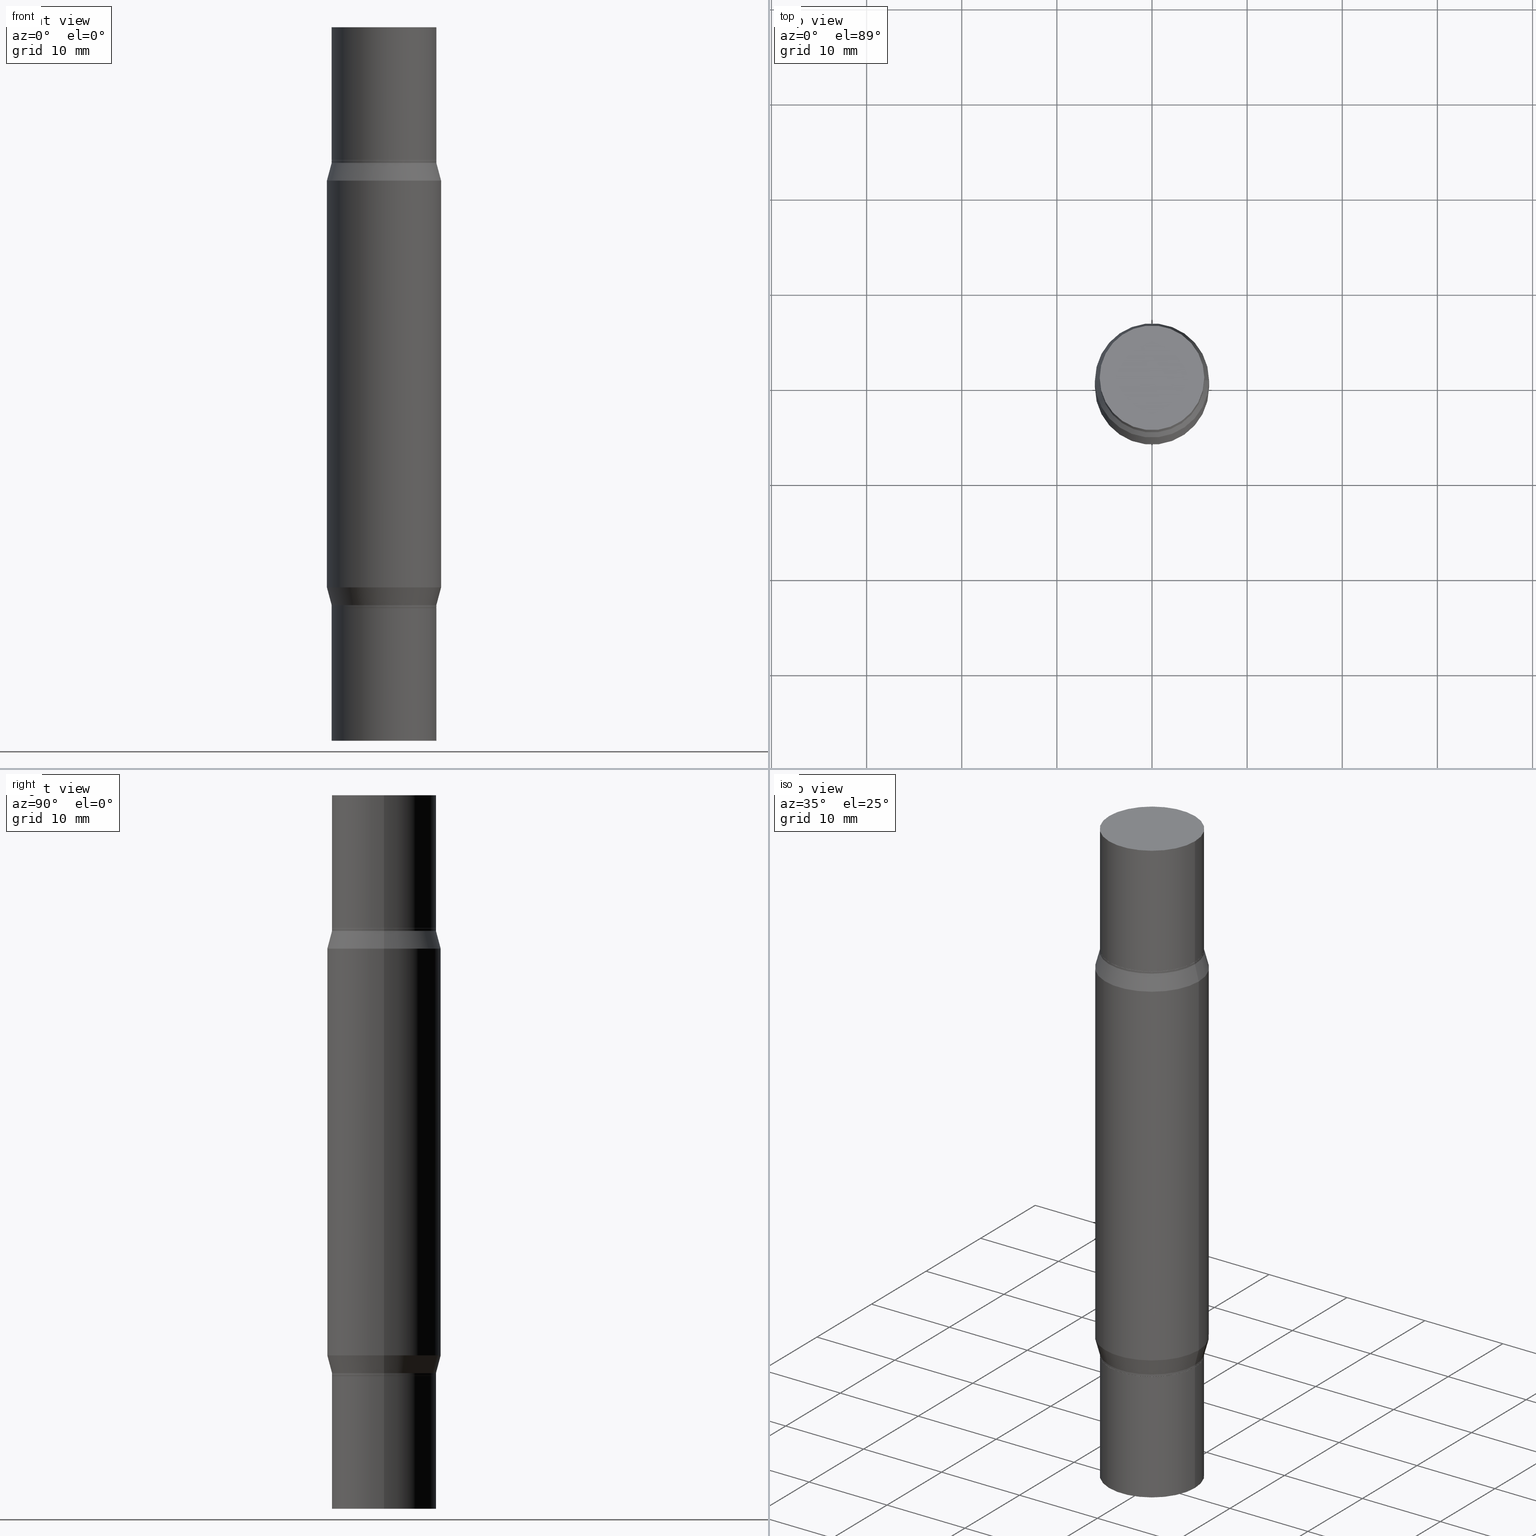
[diagram: canonical four-view strip — front | top / right | iso, engineering-drawing reading convention]
A machine part, canonical four-view strip (front | top / right | iso — engineering-drawing reading convention). The complete STEP part file that produces these views, byte-faithful:
ISO-10303-21;
HEADER;
FILE_DESCRIPTION (( 'STEP AP203' ),
    '1' );
FILE_NAME ('41561.STEP',
    '2024-03-04T16:10:04',
    ( '' ),
    ( '' ),
    'SwSTEP 2.0',
    'SolidWorks 2023',
    '' );
FILE_SCHEMA (( 'CONFIG_CONTROL_DESIGN' ));
ENDSEC;

DATA;
#1 = DIRECTION ( 'NONE',  ( -2.438088387897959208E-29, -3.491805094961123683E-15, -1.000000000000000000 ) ) ;
#2 = DIRECTION ( 'NONE',  ( 1.000000000000000000, -6.982962677686265922E-15, 0.000000000000000000 ) ) ;
#3 = ORIENTED_EDGE ( 'NONE', *, *, #222, .T. ) ;
#4 = CARTESIAN_POINT ( 'NONE',  ( 0.2165499999999999647, -1.512160567852960823E-15, 1.055936080798609895E-29 ) ) ;
#5 = DIRECTION ( 'NONE',  ( 2.445468806185136597E-29, 3.491805094961124077E-15, 1.000000000000000000 ) ) ;
#6 = DIRECTION ( 'NONE',  ( 2.445468806185136597E-29, 3.491805094961124077E-15, 1.000000000000000000 ) ) ;
#7 = LINE ( 'NONE', #695, #309 ) ;
#8 = ORIENTED_EDGE ( 'NONE', *, *, #42, .T. ) ;
#9 = PLANE ( 'NONE',  #348 ) ;
#10 = FACE_OUTER_BOUND ( 'NONE', #266, .T. ) ;
#11 = DIRECTION ( 'NONE',  ( -2.445468806185136597E-29, 3.491481338843145583E-15, 1.000000000000000000 ) ) ;
#12 = ORIENTED_EDGE ( 'NONE', *, *, #809, .F. ) ;
#13 = AXIS2_PLACEMENT_3D ( 'NONE', #793, #11, #257 ) ;
#14 = CARTESIAN_POINT ( 'NONE',  ( 0.2165500000000000758, -1.512160567852961612E-15, 1.055936080798610316E-29 ) ) ;
#15 = DIRECTION ( 'NONE',  ( 2.445468806185136597E-29, 3.491805094961124077E-15, 1.000000000000000000 ) ) ;
#16 = FACE_OUTER_BOUND ( 'NONE', #299, .T. ) ;
#17 = VERTEX_POINT ( 'NONE', #371 ) ;
#18 = LINE ( 'NONE', #337, #890 ) ;
#19 = DIRECTION ( 'NONE',  ( 1.000000000000000000, -6.982962677686265133E-15, 0.000000000000000000 ) ) ;
#20 = ORIENTED_EDGE ( 'NONE', *, *, #658, .T. ) ;
#21 = EDGE_CURVE ( 'NONE', #598, #808, #417, .T. ) ;
#22 = DIRECTION ( 'NONE',  ( 0.000000000000000000, 1.000000000000000000, -3.491643216902134435E-15 ) ) ;
#23 = CARTESIAN_POINT ( 'NONE',  ( 0.2361999999999999933, -3.864569632810967459E-15, -0.6345347983687280591 ) ) ;
#24 = EDGE_LOOP ( 'NONE', ( #863, #462, #781, #189 ) ) ;
#25 = PLANE ( 'NONE',  #134 ) ;
#26 = DIRECTION ( 'NONE',  ( -2.445468806185136877E-29, -3.491805094961123683E-15, -1.000000000000000000 ) ) ;
#27 = CIRCLE ( 'NONE', #259, 0.2160500000000000753 ) ;
#28 = DIRECTION ( 'NONE',  ( -2.445468806185136597E-29, 3.491481338843145583E-15, 1.000000000000000000 ) ) ;
#29 = AXIS2_PLACEMENT_3D ( 'NONE', #256, #554, #860 ) ;
#30 = ORIENTED_EDGE ( 'NONE', *, *, #122, .T. ) ;
#31 = AXIS2_PLACEMENT_3D ( 'NONE', #151, #69, #305 ) ;
#32 = VECTOR ( 'NONE', #883, 39.37007874015748854 ) ;
#33 = CARTESIAN_POINT ( 'NONE',  ( 5.848583196872371682E-29, -1.959123025759598129E-15, -0.5611999999999994770 ) ) ;
#34 = ORIENTED_EDGE ( 'NONE', *, *, #463, .F. ) ;
#35 = CARTESIAN_POINT ( 'NONE',  ( 5.848583196872371682E-29, -1.959123025759598129E-15, -0.5611999999999994770 ) ) ;
#36 = ORIENTED_EDGE ( 'NONE', *, *, #942, .T. ) ;
#37 = PRODUCT ( '41561', '41561', '', ( #723 ) ) ;
#38 = EDGE_CURVE ( 'NONE', #819, #303, #812, .T. ) ;
#39 = PERSON_AND_ORGANIZATION_ROLE ( 'design_supplier' ) ;
#40 = DIRECTION ( 'NONE',  ( 2.445468806185136597E-29, 3.491805094961124077E-15, 1.000000000000000000 ) ) ;
#41 = DIRECTION ( 'NONE',  ( 1.000000000000000000, -6.982962677686265922E-15, 0.000000000000000000 ) ) ;
#42 = EDGE_CURVE ( 'NONE', #453, #819, #951, .T. ) ;
#43 = DATE_AND_TIME ( #581, #649 ) ;
#44 = VERTEX_POINT ( 'NONE', #207 ) ;
#45 = AXIS2_PLACEMENT_3D ( 'NONE', #698, #768, #845 ) ;
#46 = CARTESIAN_POINT ( 'NONE',  ( 5.873037884934223228E-29, -1.924204974809987744E-15, -0.5511999999999995792 ) ) ;
#47 = SECURITY_CLASSIFICATION ( '', '', #811 ) ;
#48 = AXIS2_PLACEMENT_3D ( 'NONE', #977, #306, #888 ) ;
#49 = CALENDAR_DATE ( 2024, 4, 3 ) ;
#50 = ADVANCED_FACE ( 'NONE', ( #512 ), #817, .T. ) ;
#51 = EDGE_CURVE ( 'NONE', #749, #938, #825, .T. ) ;
#52 = ADVANCED_FACE ( 'NONE', ( #822 ), #140, .T. ) ;
#53 = ORIENTED_EDGE ( 'NONE', *, *, #372, .F. ) ;
#54 = DIRECTION ( 'NONE',  ( 1.000000000000000000, -6.982962677686261977E-15, 0.000000000000000000 ) ) ;
#55 = VERTEX_POINT ( 'NONE', #521 ) ;
#56 = DIRECTION ( 'NONE',  ( -2.445468806185136877E-29, -3.491805094961123683E-15, -1.000000000000000000 ) ) ;
#57 = EDGE_CURVE ( 'NONE', #225, #808, #969, .T. ) ;
#58 = CARTESIAN_POINT ( 'NONE',  ( 0.2361999999999999933, -1.195949987533811801E-14, -2.952799999999998981 ) ) ;
#59 = ORIENTED_EDGE ( 'NONE', *, *, #653, .T. ) ;
#60 = APPROVAL_ROLE ( '' ) ;
#61 = DIRECTION ( 'NONE',  ( 1.000000000000000000, -6.982962677686265922E-15, 0.000000000000000000 ) ) ;
#62 = CONICAL_SURFACE ( 'NONE', #152, 0.2165499999999999647, 0.2617993877991491303 ) ;
#63 = ORIENTED_EDGE ( 'NONE', *, *, #669, .T. ) ;
#64 = CIRCLE ( 'NONE', #904, 0.2160500000000000753 ) ;
#65 = CARTESIAN_POINT ( 'NONE',  ( -0.2165500000000000758, -7.808713546062369221E-15, -2.401599999999999735 ) ) ;
#66 = ADVANCED_FACE ( 'NONE', ( #218 ), #526, .T. ) ;
#67 = CARTESIAN_POINT ( 'NONE',  ( 5.873037884934223228E-29, -8.385141583365697263E-15, -2.401599999999999735 ) ) ;
#68 = ORIENTED_EDGE ( 'NONE', *, *, #523, .T. ) ;
#69 = DIRECTION ( 'NONE',  ( -2.438088387897959208E-29, -3.491805094961123683E-15, -1.000000000000000000 ) ) ;
#70 = ADVANCED_FACE ( 'NONE', ( #456 ), #963, .T. ) ;
#71 = DIRECTION ( 'NONE',  ( -2.445468806185136597E-29, -3.491805094961124077E-15, -1.000000000000000000 ) ) ;
#72 = ORIENTED_EDGE ( 'NONE', *, *, #363, .F. ) ;
#73 = DIRECTION ( 'NONE',  ( -2.445468806185136597E-29, 3.491481338843145583E-15, 1.000000000000000000 ) ) ;
#74 = EDGE_CURVE ( 'NONE', #55, #97, #142, .T. ) ;
#75 = MANIFOLD_SOLID_BREP ( 'Body-Move/Copy2[1]', #967 ) ;
#76 = DIRECTION ( 'NONE',  ( 1.000000000000000000, -6.982962677686269077E-15, 0.000000000000000000 ) ) ;
#77 = ORIENTED_EDGE ( 'NONE', *, *, #330, .T. ) ;
#78 = CIRCLE ( 'NONE', #327, 0.2165499999999999647 ) ;
#79 = CIRCLE ( 'NONE', #13, 0.2165500000000000758 ) ;
#80 = VECTOR ( 'NONE', #144, 39.37007874015748143 ) ;
#81 = CIRCLE ( 'NONE', #650, 0.2165500000000000758 ) ;
#82 = DIRECTION ( 'NONE',  ( 1.000000000000000000, -6.982962677686266711E-15, 0.000000000000000000 ) ) ;
#83 = CARTESIAN_POINT ( 'NONE',  ( 0.2165499999999999647, -3.471283593612558952E-15, -0.5611999999999994770 ) ) ;
#84 = ADVANCED_FACE ( 'NONE', ( #298 ), #745, .T. ) ;
#85 = CARTESIAN_POINT ( 'NONE',  ( 0.2160500000000000753, -9.893810669879815079E-15, -2.401599999999999735 ) ) ;
#86 = ORIENTED_EDGE ( 'NONE', *, *, #265, .T. ) ;
#87 = DIRECTION ( 'NONE',  ( 1.000000000000000000, -6.982962677686265922E-15, 0.000000000000000000 ) ) ;
#88 = DIRECTION ( 'NONE',  ( -2.445468806185136597E-29, 3.491481338843145583E-15, 1.000000000000000000 ) ) ;
#89 = CARTESIAN_POINT ( 'NONE',  ( 5.873037884934223228E-29, -1.924204974809987744E-15, -0.5511999999999995792 ) ) ;
#90 = DIRECTION ( 'NONE',  ( -0.7071067811865715536, 2.382025595312483759E-15, -0.7071067811865232589 ) ) ;
#91 = ADVANCED_FACE ( 'NONE', ( #376 ), #588, .F. ) ;
#92 = EDGE_LOOP ( 'NONE', ( #859, #367, #36, #849 ) ) ;
#93 = DIRECTION ( 'NONE',  ( -1.000000000000000000, 6.982962677686265922E-15, -2.260776888683160832E-33 ) ) ;
#94 = CARTESIAN_POINT ( 'NONE',  ( 5.848583196872371682E-29, -1.959123025759598129E-15, -0.5611999999999994770 ) ) ;
#95 = MANIFOLD_SOLID_BREP ( 'Mirror1[1]', #833 ) ;
#96 = LINE ( 'NONE', #776, #101 ) ;
#97 = VERTEX_POINT ( 'NONE', #387 ) ;
#98 = ADVANCED_FACE ( 'NONE', ( #292 ), #894, .T. ) ;
#99 = EDGE_CURVE ( 'NONE', #644, #210, #974, .T. ) ;
#100 = CIRCLE ( 'NONE', #600, 0.2165499999999999647 ) ;
#101 = VECTOR ( 'NONE', #90, 39.37007874015748854 ) ;
#102 = CARTESIAN_POINT ( 'NONE',  ( 0.2165500000000000203, -9.895556410549237371E-15, -2.401099999999999568 ) ) ;
#103 = LOCAL_TIME ( 11, 10, 4.000000000000000000, #206 ) ;
#104 = CARTESIAN_POINT ( 'NONE',  ( -0.2165500000000000203, -6.844715548407777874E-15, -2.401099999999999568 ) ) ;
#105 = VERTEX_POINT ( 'NONE', #452 ) ;
#106 = EDGE_CURVE ( 'NONE', #869, #607, #582, .T. ) ;
#107 = PRODUCT_DEFINITION ( 'UNKNOWN', '', #891, #743 ) ;
#108 = CARTESIAN_POINT ( 'NONE',  ( 3.610490145451734531E-29, -5.154823048668018475E-15, -1.476399999999999491 ) ) ;
#109 = DIRECTION ( 'NONE',  ( 1.000000000000000000, -6.982962677686266711E-15, 0.000000000000000000 ) ) ;
#110 = CARTESIAN_POINT ( 'NONE',  ( -0.2160500000000000753, -4.419943823914477196E-16, -0.5511999999999995792 ) ) ;
#111 = ORIENTED_EDGE ( 'NONE', *, *, #515, .F. ) ;
#112 = ORIENTED_EDGE ( 'NONE', *, *, #759, .T. ) ;
#113 = DIRECTION ( 'NONE',  ( 1.000000000000000000, -6.982962677686265922E-15, 0.000000000000000000 ) ) ;
#114 = DIRECTION ( 'NONE',  ( 1.000000000000000000, 0.000000000000000000, 0.000000000000000000 ) ) ;
#115 = CIRCLE ( 'NONE', #472, 0.2165499999999999647 ) ;
#116 = DIRECTION ( 'NONE',  ( -2.445468806185136877E-29, -3.491805094961123683E-15, -1.000000000000000000 ) ) ;
#117 = VECTOR ( 'NONE', #116, 39.37007874015748143 ) ;
#118 = LINE ( 'NONE', #4, #915 ) ;
#119 = EDGE_LOOP ( 'NONE', ( #336, #176, #495, #315 ) ) ;
#120 = EDGE_CURVE ( 'NONE', #553, #671, #474, .T. ) ;
#121 = ORIENTED_EDGE ( 'NONE', *, *, #515, .T. ) ;
#122 = EDGE_CURVE ( 'NONE', #788, #405, #933, .T. ) ;
#123 = CC_DESIGN_PERSON_AND_ORGANIZATION_ASSIGNMENT ( #297, #39, ( #891 ) ) ;
#124 = DIRECTION ( 'NONE',  ( 1.000000000000000000, -6.982962677686266711E-15, 0.000000000000000000 ) ) ;
#125 = DATE_AND_TIME ( #950, #832 ) ;
#126 = ORIENTED_EDGE ( 'NONE', *, *, #575, .T. ) ;
#127 = DIRECTION ( 'NONE',  ( -2.445468806185136597E-29, 3.491481338843145583E-15, 1.000000000000000000 ) ) ;
#128 = EDGE_LOOP ( 'NONE', ( #126, #20 ) ) ;
#129 = EDGE_CURVE ( 'NONE', #543, #163, #573, .T. ) ;
#130 = PERSON_AND_ORGANIZATION ( #611, #395 ) ;
#131 = EDGE_CURVE ( 'NONE', #44, #258, #81, .T. ) ;
#132 = CIRCLE ( 'NONE', #182, 0.2361999999999999933 ) ;
#133 = ORIENTED_EDGE ( 'NONE', *, *, #191, .F. ) ;
#134 = AXIS2_PLACEMENT_3D ( 'NONE', #261, #935, #353 ) ;
#135 = FACE_OUTER_BOUND ( 'NONE', #230, .T. ) ;
#136 = APPROVAL_PERSON_ORGANIZATION ( #202, #739, #816 ) ;
#137 = VECTOR ( 'NONE', #224, 39.37007874015748143 ) ;
#138 = CC_DESIGN_PERSON_AND_ORGANIZATION_ASSIGNMENT ( #881, #451, ( #891 ) ) ;
#139 = APPLICATION_PROTOCOL_DEFINITION ( 'international standard', 'config_control_design', 1994, #221 ) ;
#140 = CYLINDRICAL_SURFACE ( 'NONE', #756, 0.2361999999999999933 ) ;
#141 = APPROVAL_STATUS ( 'not_yet_approved' ) ;
#142 = LINE ( 'NONE', #447, #685 ) ;
#143 = EDGE_LOOP ( 'NONE', ( #920, #691 ) ) ;
#144 = DIRECTION ( 'NONE',  ( -2.445468806185136877E-29, 3.491481338843145188E-15, 1.000000000000000000 ) ) ;
#145 = LINE ( 'NONE', #973, #215 ) ;
#146 = DIRECTION ( 'NONE',  ( -2.445468806185136877E-29, -3.491805094961123683E-15, -1.000000000000000000 ) ) ;
#147 = VECTOR ( 'NONE', #373, 39.37007874015748854 ) ;
#148 = EDGE_LOOP ( 'NONE', ( #877, #732, #742, #63 ) ) ;
#149 = CIRCLE ( 'NONE', #443, 0.2361999999999999933 ) ;
#150 = AXIS2_PLACEMENT_3D ( 'NONE', #856, #709, #341 ) ;
#151 = CARTESIAN_POINT ( 'NONE',  ( 5.873037884934223228E-29, -1.924204974809987744E-15, -0.5511999999999995792 ) ) ;
#152 = AXIS2_PLACEMENT_3D ( 'NONE', #94, #323, #546 ) ;
#153 = CARTESIAN_POINT ( 'NONE',  ( 0.000000000000000000, -1.031012409086862149E-14, -2.952799999999998981 ) ) ;
#154 = EDGE_LOOP ( 'NONE', ( #527, #955, #964, #614 ) ) ;
#155 = CARTESIAN_POINT ( 'NONE',  ( 0.000000000000000000, -1.031012409086862149E-14, -2.952799999999998981 ) ) ;
#156 = ORIENTED_EDGE ( 'NONE', *, *, #759, .F. ) ;
#157 = EDGE_CURVE ( 'NONE', #570, #505, #349, .T. ) ;
#158 = EDGE_CURVE ( 'NONE', #505, #570, #892, .T. ) ;
#159 = DIRECTION ( 'NONE',  ( -2.445468806185136597E-29, 3.491481338843145583E-15, 1.000000000000000000 ) ) ;
#160 = DIRECTION ( 'NONE',  ( 1.000000000000000000, -6.982962677686261977E-15, 0.000000000000000000 ) ) ;
#161 = EDGE_CURVE ( 'NONE', #725, #747, #929, .T. ) ;
#162 = CARTESIAN_POINT ( 'NONE',  ( 0.000000000000000000, 0.000000000000000000, 0.000000000000000000 ) ) ;
#163 = VERTEX_POINT ( 'NONE', #770 ) ;
#164 = AXIS2_PLACEMENT_3D ( 'NONE', #46, #565, #190 ) ;
#165 = AXIS2_PLACEMENT_3D ( 'NONE', #919, #913, #179 ) ;
#166 = AXIS2_PLACEMENT_3D ( 'NONE', #865, #497, #797 ) ;
#167 = ADVANCED_FACE ( 'NONE', ( #236 ), #540, .T. ) ;
#168 = CARTESIAN_POINT ( 'NONE',  ( 7.220980290903470182E-29, 4.779935325870401828E-19, 5.463695987328526437E-16 ) ) ;
#169 = DIRECTION ( 'NONE',  ( 1.000000000000000000, -6.982962677686266711E-15, 0.000000000000000000 ) ) ;
#170 = CYLINDRICAL_SURFACE ( 'NONE', #291, 0.2361999999999999933 ) ;
#171 = ORIENTED_EDGE ( 'NONE', *, *, #715, .F. ) ;
#172 = PLANE ( 'NONE',  #518 ) ;
#173 = DIRECTION ( 'NONE',  ( 2.445468806185136597E-29, 3.491805094961124077E-15, 1.000000000000000000 ) ) ;
#174 = DIRECTION ( 'NONE',  ( 2.445468806185136597E-29, 3.491805094961124077E-15, 1.000000000000000000 ) ) ;
#175 = DIRECTION ( 'NONE',  ( 1.000000000000000000, -6.982962677686266711E-15, 0.000000000000000000 ) ) ;
#176 = ORIENTED_EDGE ( 'NONE', *, *, #57, .T. ) ;
#177 = ADVANCED_FACE ( 'NONE', ( #10 ), #62, .T. ) ;
#178 = DIRECTION ( 'NONE',  ( 2.445468806185136597E-29, 3.491805094961124077E-15, 1.000000000000000000 ) ) ;
#179 = DIRECTION ( 'NONE',  ( 0.000000000000000000, 1.000000000000000000, -3.469747663417777397E-15 ) ) ;
#180 = ORIENTED_EDGE ( 'NONE', *, *, #873, .T. ) ;
#181 = EDGE_CURVE ( 'NONE', #806, #932, #767, .T. ) ;
#182 = AXIS2_PLACEMENT_3D ( 'NONE', #318, #15, #617 ) ;
#183 = AXIS2_PLACEMENT_3D ( 'NONE', #419, #5, #681 ) ;
#184 = FACE_OUTER_BOUND ( 'NONE', #666, .T. ) ;
#185 = CONICAL_SURFACE ( 'NONE', #684, 0.2165499999999999647, 0.2617993877991491303 ) ;
#186 = FACE_OUTER_BOUND ( 'NONE', #844, .T. ) ;
#187 = ORIENTED_EDGE ( 'NONE', *, *, #873, .F. ) ;
#188 = FACE_OUTER_BOUND ( 'NONE', #687, .T. ) ;
#189 = ORIENTED_EDGE ( 'NONE', *, *, #782, .T. ) ;
#190 = DIRECTION ( 'NONE',  ( 1.000000000000000000, -6.982962677686266711E-15, 0.000000000000000000 ) ) ;
#191 = EDGE_CURVE ( 'NONE', #592, #644, #889, .T. ) ;
#192 = CARTESIAN_POINT ( 'NONE',  ( 0.000000000000000000, 0.000000000000000000, 0.000000000000000000 ) ) ;
#193 = ORIENTED_EDGE ( 'NONE', *, *, #652, .T. ) ;
#194 = DIRECTION ( 'NONE',  ( -2.445468806185136597E-29, 3.491481338843145583E-15, 1.000000000000000000 ) ) ;
#195 = ORIENTED_EDGE ( 'NONE', *, *, #796, .F. ) ;
#196 = AXIS2_PLACEMENT_3D ( 'NONE', #595, #88, #538 ) ;
#197 = CC_DESIGN_APPROVAL ( #633, ( #47 ) ) ;
#198 = ORIENTED_EDGE ( 'NONE', *, *, #608, .F. ) ;
#199 = AXIS2_PLACEMENT_3D ( 'NONE', #228, #465, #670 ) ;
#200 = CARTESIAN_POINT ( 'NONE',  ( 0.000000000000000000, -1.031012409086862149E-14, -2.952799999999998981 ) ) ;
#201 = VERTEX_POINT ( 'NONE', #83 ) ;
#202 = PERSON_AND_ORGANIZATION ( #611, #395 ) ;
#203 = ORIENTED_EDGE ( 'NONE', *, *, #359, .F. ) ;
#204 = CARTESIAN_POINT ( 'NONE',  ( 0.2165500000000000758, -1.511682574320374511E-15, 5.463695987328526437E-16 ) ) ;
#205 = ORIENTED_EDGE ( 'NONE', *, *, #42, .F. ) ;
#206 = COORDINATED_UNIVERSAL_TIME_OFFSET ( 5, 0, .BEHIND. ) ;
#207 = CARTESIAN_POINT ( 'NONE',  ( -0.2165500000000000758, 5.237773507787245229E-16, 5.463695987328561936E-16 ) ) ;
#208 = PRODUCT_RELATED_PRODUCT_CATEGORY ( 'detail', '', ( #37 ) ) ;
#209 = CARTESIAN_POINT ( 'NONE',  ( 5.848583196872371682E-29, -8.350226769977265614E-15, -2.391599999999999504 ) ) ;
#210 = VERTEX_POINT ( 'NONE', #398 ) ;
#211 = ADVANCED_FACE ( 'NONE', ( #779 ), #516, .T. ) ;
#212 = SHAPE_DEFINITION_REPRESENTATION ( #795, #422 ) ;
#213 = AXIS2_PLACEMENT_3D ( 'NONE', #264, #813, #41 ) ;
#214 = CARTESIAN_POINT ( 'NONE',  ( 5.669245235053768865E-29, -2.215193848341470539E-15, -0.6345347983687280591 ) ) ;
#215 = VECTOR ( 'NONE', #56, 39.37007874015748143 ) ;
#216 = VECTOR ( 'NONE', #678, 39.37007874015748143 ) ;
#217 = AXIS2_PLACEMENT_3D ( 'NONE', #602, #663, #2 ) ;
#218 = FACE_OUTER_BOUND ( 'NONE', #630, .T. ) ;
#219 = ORIENTED_EDGE ( 'NONE', *, *, #459, .T. ) ;
#220 = COORDINATED_UNIVERSAL_TIME_OFFSET ( 5, 0, .BEHIND. ) ;
#221 = APPLICATION_CONTEXT ( 'configuration controlled 3d designs of mechanical parts and assemblies' ) ;
#222 = EDGE_CURVE ( 'NONE', #747, #725, #278, .T. ) ;
#223 = CARTESIAN_POINT ( 'NONE',  ( -0.2165500000000000203, -4.403100359400426399E-16, -0.5516999999999995241 ) ) ;
#224 = DIRECTION ( 'NONE',  ( -2.445468806185136877E-29, -3.491805094961123683E-15, -1.000000000000000000 ) ) ;
#225 = VERTEX_POINT ( 'NONE', #912 ) ;
#226 = PLANE ( 'NONE',  #31 ) ;
#227 = EDGE_CURVE ( 'NONE', #749, #869, #132, .T. ) ;
#228 = CARTESIAN_POINT ( 'NONE',  ( 0.000000000000000000, -1.031012409086862149E-14, -2.952799999999998981 ) ) ;
#229 = AXIS2_PLACEMENT_3D ( 'NONE', #727, #127, #947 ) ;
#230 = EDGE_LOOP ( 'NONE', ( #576, #86, #219, #12 ) ) ;
#231 = VECTOR ( 'NONE', #317, 39.37007874015748143 ) ;
#232 =( GEOMETRIC_REPRESENTATION_CONTEXT ( 3 ) GLOBAL_UNCERTAINTY_ASSIGNED_CONTEXT ( ( #304 ) ) GLOBAL_UNIT_ASSIGNED_CONTEXT ( ( #631, #643, #562 ) ) REPRESENTATION_CONTEXT ( 'NONE', 'WORKASPACE' ) );
#233 = CARTESIAN_POINT ( 'NONE',  ( -0.2361999999999999933, -8.689674463794984831E-15, -2.952799999999998981 ) ) ;
#234 = ORIENTED_EDGE ( 'NONE', *, *, #729, .F. ) ;
#235 = CARTESIAN_POINT ( 'NONE',  ( 5.669245235053768865E-29, -2.215193848341470539E-15, -0.6345347983687280591 ) ) ;
#236 = FACE_OUTER_BOUND ( 'NONE', #400, .T. ) ;
#237 = ORIENTED_EDGE ( 'NONE', *, *, #51, .F. ) ;
#238 = CARTESIAN_POINT ( 'NONE',  ( 0.2165499999999999647, -1.182228465872158231E-14, -2.952799999999998981 ) ) ;
#239 = ADVANCED_FACE ( 'NONE', ( #610 ), #918, .T. ) ;
#240 = DIRECTION ( 'NONE',  ( 2.445468806185136597E-29, 3.491805094961124077E-15, 1.000000000000000000 ) ) ;
#241 = DIRECTION ( 'NONE',  ( -0.2588190451025204619, -1.597197180879721229E-15, -0.9659258262890684232 ) ) ;
#242 = CARTESIAN_POINT ( 'NONE',  ( 0.2165500000000000758, -9.897302151218658086E-15, -2.401599999999999735 ) ) ;
#243 = ORIENTED_EDGE ( 'NONE', *, *, #839, .T. ) ;
#244 = AXIS2_PLACEMENT_3D ( 'NONE', #480, #240, #169 ) ;
#245 = CIRCLE ( 'NONE', #619, 0.2165500000000000203 ) ;
#246 = ADVANCED_FACE ( 'NONE', ( #313 ), #606, .T. ) ;
#247 = LINE ( 'NONE', #238, #231 ) ;
#248 = DIRECTION ( 'NONE',  ( 1.000000000000000000, -6.982962677686266711E-15, 0.000000000000000000 ) ) ;
#249 = DIRECTION ( 'NONE',  ( 1.000000000000000000, -6.982962677686269077E-15, 0.000000000000000000 ) ) ;
#250 = EDGE_LOOP ( 'NONE', ( #874, #180, #940, #910 ) ) ;
#251 = CARTESIAN_POINT ( 'NONE',  ( -0.2165500000000000758, 5.237773507787242271E-16, -0.5511999999999995792 ) ) ;
#252 = CARTESIAN_POINT ( 'NONE',  ( 0.000000000000000000, 0.000000000000000000, 0.000000000000000000 ) ) ;
#253 = CARTESIAN_POINT ( 'NONE',  ( 5.873037884934223228E-29, -1.924204974809987744E-15, -0.5511999999999995792 ) ) ;
#254 = EDGE_LOOP ( 'NONE', ( #711, #537, #369, #646 ) ) ;
#255 = CC_DESIGN_PERSON_AND_ORGANIZATION_ASSIGNMENT ( #269, #358, ( #37 ) ) ;
#256 = CARTESIAN_POINT ( 'NONE',  ( 5.669245235053768865E-29, -8.094179689985024433E-15, -2.318265201631271033 ) ) ;
#257 = DIRECTION ( 'NONE',  ( 1.000000000000000000, -6.982962677686261977E-15, 0.000000000000000000 ) ) ;
#258 = VERTEX_POINT ( 'NONE', #204 ) ;
#259 = AXIS2_PLACEMENT_3D ( 'NONE', #798, #741, #430 ) ;
#260 = VECTOR ( 'NONE', #332, 39.37007874015748143 ) ;
#261 = CARTESIAN_POINT ( 'NONE',  ( 1.512160567853020184E-15, 0.2165499999999916658, -2.401600000000000623 ) ) ;
#262 = DIRECTION ( 'NONE',  ( 2.445468806185136597E-29, 3.491805094961124077E-15, 1.000000000000000000 ) ) ;
#263 = ORIENTED_EDGE ( 'NONE', *, *, #407, .T. ) ;
#264 = CARTESIAN_POINT ( 'NONE',  ( 0.000000000000000000, -1.031012409086862149E-14, -2.952799999999998981 ) ) ;
#265 = EDGE_CURVE ( 'NONE', #17, #105, #78, .T. ) ;
#266 = EDGE_LOOP ( 'NONE', ( #203, #458, #794, #829 ) ) ;
#267 = CARTESIAN_POINT ( 'NONE',  ( 0.2160500000000000753, -9.893810669879815079E-15, -2.401599999999999735 ) ) ;
#268 = ORIENTED_EDGE ( 'NONE', *, *, #129, .T. ) ;
#269 = PERSON_AND_ORGANIZATION ( #611, #395 ) ;
#270 = ORIENTED_EDGE ( 'NONE', *, *, #699, .T. ) ;
#271 = ADVANCED_FACE ( 'NONE', ( #645 ), #272, .F. ) ;
#272 = PLANE ( 'NONE',  #944 ) ;
#273 = AXIS2_PLACEMENT_3D ( 'NONE', #851, #334, #623 ) ;
#274 = PERSON_AND_ORGANIZATION ( #611, #395 ) ;
#275 = VECTOR ( 'NONE', #852, 39.37007874015748854 ) ;
#276 = ADVANCED_FACE ( 'NONE', ( #513 ), #572, .T. ) ;
#277 = DIRECTION ( 'NONE',  ( 1.000000000000000000, -6.982962677686266711E-15, 0.000000000000000000 ) ) ;
#278 = CIRCLE ( 'NONE', #413, 0.2165500000000000758 ) ;
#279 = DIRECTION ( 'NONE',  ( 2.438088387897959208E-29, 3.491805094961123683E-15, 1.000000000000000000 ) ) ;
#280 = EDGE_CURVE ( 'NONE', #553, #788, #577, .T. ) ;
#281 = ADVANCED_FACE ( 'NONE', ( #135 ), #635, .T. ) ;
#282 = ORIENTED_EDGE ( 'NONE', *, *, #450, .F. ) ;
#283 = ADVANCED_FACE ( 'NONE', ( #870 ), #502, .T. ) ;
#284 = CARTESIAN_POINT ( 'NONE',  ( 0.000000000000000000, -1.031012409086862149E-14, -2.952799999999998981 ) ) ;
#285 = ORIENTED_EDGE ( 'NONE', *, *, #157, .F. ) ;
#286 = ADVANCED_FACE ( 'NONE', ( #506 ), #441, .T. ) ;
#287 = PERSON_AND_ORGANIZATION_ROLE ( 'classification_officer' ) ;
#288 = ORIENTED_EDGE ( 'NONE', *, *, #345, .F. ) ;
#289 = ORIENTED_EDGE ( 'NONE', *, *, #692, .T. ) ;
#290 = EDGE_CURVE ( 'NONE', #808, #598, #680, .T. ) ;
#291 = AXIS2_PLACEMENT_3D ( 'NONE', #494, #857, #19 ) ;
#292 = FACE_OUTER_BOUND ( 'NONE', #148, .T. ) ;
#293 = CONICAL_SURFACE ( 'NONE', #636, 0.2160500000000000753, 0.7853981633974824739 ) ;
#294 = CC_DESIGN_APPROVAL ( #739, ( #107 ) ) ;
#295 = ORIENTED_EDGE ( 'NONE', *, *, #899, .F. ) ;
#296 = CARTESIAN_POINT ( 'NONE',  ( -0.2165500000000000758, 1.538680294288497491E-15, -1.065195393794700203E-29 ) ) ;
#297 = PERSON_AND_ORGANIZATION ( #611, #395 ) ;
#298 = FACE_OUTER_BOUND ( 'NONE', #885, .T. ) ;
#299 = EDGE_LOOP ( 'NONE', ( #902, #620, #568, #945 ) ) ;
#300 = DIRECTION ( 'NONE',  ( 2.445468806185136597E-29, 3.491805094961124077E-15, 1.000000000000000000 ) ) ;
#301 = CARTESIAN_POINT ( 'NONE',  ( -0.2165499999999999647, -8.824483249451196938E-15, -2.952799999999998981 ) ) ;
#302 = DIRECTION ( 'NONE',  ( -2.445468806185136597E-29, 3.491481338843145583E-15, 1.000000000000000000 ) ) ;
#303 = VERTEX_POINT ( 'NONE', #807 ) ;
#304 = UNCERTAINTY_MEASURE_WITH_UNIT (LENGTH_MEASURE( 1.000000000000000082E-05 ), #631, 'distance_accuracy_value', 'NONE');
#305 = DIRECTION ( 'NONE',  ( 1.000000000000000000, -6.982962677686265922E-15, 2.260776888683160832E-33 ) ) ;
#306 = DIRECTION ( 'NONE',  ( 2.445468806185136597E-29, 3.491805094961124077E-15, 1.000000000000000000 ) ) ;
#307 = AXIS2_PLACEMENT_3D ( 'NONE', #35, #580, #446 ) ;
#308 = ORIENTED_EDGE ( 'NONE', *, *, #227, .T. ) ;
#309 = VECTOR ( 'NONE', #848, 39.37007874015748854 ) ;
#310 = APPROVAL_PERSON_ORGANIZATION ( #370, #726, #364 ) ;
#311 = EDGE_CURVE ( 'NONE', #163, #592, #510, .T. ) ;
#312 = DIRECTION ( 'NONE',  ( 1.000000000000000000, -6.982962677686265922E-15, 2.260776888683160832E-33 ) ) ;
#313 = FACE_OUTER_BOUND ( 'NONE', #119, .T. ) ;
#314 = CARTESIAN_POINT ( 'NONE',  ( -0.2361999999999999933, -8.689674463794984831E-15, -2.952799999999998981 ) ) ;
#315 = ORIENTED_EDGE ( 'NONE', *, *, #942, .F. ) ;
#316 = EDGE_CURVE ( 'NONE', #163, #543, #27, .T. ) ;
#317 = DIRECTION ( 'NONE',  ( -2.445468806185136877E-29, -3.491805094961123683E-15, -1.000000000000000000 ) ) ;
#318 = CARTESIAN_POINT ( 'NONE',  ( 5.669245235053768865E-29, -2.215193848341470539E-15, -0.6345347983687280591 ) ) ;
#319 = LINE ( 'NONE', #477, #414 ) ;
#320 = APPLICATION_CONTEXT ( 'configuration controlled 3d designs of mechanical parts and assemblies' ) ;
#321 = ORIENTED_EDGE ( 'NONE', *, *, #637, .F. ) ;
#322 = CARTESIAN_POINT ( 'NONE',  ( 1.512160567853020184E-15, 0.2165499999999981329, -0.5512000000000003563 ) ) ;
#323 = DIRECTION ( 'NONE',  ( -2.445468806185136597E-29, -3.491805094961124077E-15, -1.000000000000000000 ) ) ;
#324 = LINE ( 'NONE', #624, #668 ) ;
#325 = DIRECTION ( 'NONE',  ( -0.2588190451025204619, -1.597197180879721229E-15, -0.9659258262890684232 ) ) ;
#326 = EDGE_LOOP ( 'NONE', ( #34, #656 ) ) ;
#327 = AXIS2_PLACEMENT_3D ( 'NONE', #209, #434, #952 ) ;
#328 = CIRCLE ( 'NONE', #803, 0.2165500000000000203 ) ;
#329 = AXIS2_PLACEMENT_3D ( 'NONE', #252, #496, #550 ) ;
#330 = EDGE_CURVE ( 'NONE', #819, #55, #667, .T. ) ;
#331 = VECTOR ( 'NONE', #389, 39.37007874015748143 ) ;
#332 = DIRECTION ( 'NONE',  ( -2.445468806185136877E-29, 3.491481338843145188E-15, 1.000000000000000000 ) ) ;
#333 = CARTESIAN_POINT ( 'NONE',  ( 5.873037884934223228E-29, -1.924204974809987744E-15, -0.5511999999999995792 ) ) ;
#334 = DIRECTION ( 'NONE',  ( -2.445468806185136597E-29, -3.491805094961124077E-15, -1.000000000000000000 ) ) ;
#335 = DIRECTION ( 'NONE',  ( 0.2588190451025204619, -5.180148453816000891E-15, -0.9659258262890684232 ) ) ;
#336 = ORIENTED_EDGE ( 'NONE', *, *, #699, .F. ) ;
#337 = CARTESIAN_POINT ( 'NONE',  ( 0.2361999999999999933, -1.195949987533811801E-14, -2.952799999999998981 ) ) ;
#338 = LENGTH_MEASURE_WITH_UNIT ( LENGTH_MEASURE( 0.02539999999999999897 ), #638 );
#339 = CARTESIAN_POINT ( 'NONE',  ( -0.2361999999999999933, -5.947442212678356578E-16, -0.6345347983687280591 ) ) ;
#340 = ORIENTED_EDGE ( 'NONE', *, *, #120, .T. ) ;
#341 = DIRECTION ( 'NONE',  ( 1.000000000000000000, -6.982962677686266711E-15, 0.000000000000000000 ) ) ;
#342 = DIRECTION ( 'NONE',  ( -2.445468806185136597E-29, 3.491481338843145583E-15, 1.000000000000000000 ) ) ;
#343 = ADVANCED_FACE ( 'NONE', ( #647 ), #437, .T. ) ;
#344 = ORIENTED_EDGE ( 'NONE', *, *, #120, .F. ) ;
#345 = EDGE_CURVE ( 'NONE', #105, #17, #701, .T. ) ;
#346 = AXIS2_PLACEMENT_3D ( 'NONE', #476, #174, #468 ) ;
#347 = DIRECTION ( 'NONE',  ( -2.445468806185136877E-29, 3.491481338843145188E-15, 1.000000000000000000 ) ) ;
#348 = AXIS2_PLACEMENT_3D ( 'NONE', #322, #467, #93 ) ;
#349 = CIRCLE ( 'NONE', #48, 0.2361999999999999933 ) ;
#350 = EDGE_LOOP ( 'NONE', ( #377, #679, #914, #237 ) ) ;
#351 = EDGE_CURVE ( 'NONE', #453, #639, #584, .T. ) ;
#352 = DIRECTION ( 'NONE',  ( -2.445468806185136597E-29, -3.491805094961124077E-15, -1.000000000000000000 ) ) ;
#353 = DIRECTION ( 'NONE',  ( -1.000000000000000000, 6.982962677686265922E-15, -4.876176775795935793E-29 ) ) ;
#354 = FACE_OUTER_BOUND ( 'NONE', #436, .T. ) ;
#355 = EDGE_LOOP ( 'NONE', ( #522, #466, #8, #77 ) ) ;
#356 = DIRECTION ( 'NONE',  ( 1.000000000000000000, -6.982962677686261977E-15, 0.000000000000000000 ) ) ;
#357 = ADVANCED_FACE ( 'NONE', ( #368 ), #937, .T. ) ;
#358 = PERSON_AND_ORGANIZATION_ROLE ( 'design_owner' ) ;
#359 = EDGE_CURVE ( 'NONE', #97, #303, #100, .T. ) ;
#360 = ORIENTED_EDGE ( 'NONE', *, *, #131, .T. ) ;
#361 = CARTESIAN_POINT ( 'NONE',  ( 0.2160500000000000753, -3.432874061324105954E-15, -0.5511999999999995792 ) ) ;
#362 = AXIS2_PLACEMENT_3D ( 'NONE', #719, #804, #124 ) ;
#363 = EDGE_CURVE ( 'NONE', #788, #105, #118, .T. ) ;
#364 = APPROVAL_ROLE ( '' ) ;
#365 = AXIS2_PLACEMENT_3D ( 'NONE', #253, #552, #485 ) ;
#366 = AXIS2_PLACEMENT_3D ( 'NONE', #802, #40, #277 ) ;
#367 = ORIENTED_EDGE ( 'NONE', *, *, #653, .F. ) ;
#368 = FACE_OUTER_BOUND ( 'NONE', #92, .T. ) ;
#369 = ORIENTED_EDGE ( 'NONE', *, *, #489, .T. ) ;
#370 = PERSON_AND_ORGANIZATION ( #611, #395 ) ;
#371 = CARTESIAN_POINT ( 'NONE',  ( -0.2165499999999999647, -6.828131012048273985E-15, -2.391599999999999504 ) ) ;
#372 = EDGE_CURVE ( 'NONE', #210, #869, #728, .T. ) ;
#373 = DIRECTION ( 'NONE',  ( 0.7071067811865715536, -7.406779323393361852E-15, -0.7071067811865232589 ) ) ;
#374 = ORIENTED_EDGE ( 'NONE', *, *, #181, .T. ) ;
#375 = APPROVAL_DATE_TIME ( #125, #633 ) ;
#376 = FACE_OUTER_BOUND ( 'NONE', #429, .T. ) ;
#377 = ORIENTED_EDGE ( 'NONE', *, *, #815, .F. ) ;
#378 = DIRECTION ( 'NONE',  ( 1.000000000000000000, -6.982962677686265922E-15, 2.260776888683160832E-33 ) ) ;
#379 = COORDINATED_UNIVERSAL_TIME_OFFSET ( 5, 0, .BEHIND. ) ;
#380 = CONICAL_SURFACE ( 'NONE', #365, 0.2160500000000000753, 0.7853981633974824739 ) ;
#381 = CARTESIAN_POINT ( 'NONE',  ( 5.871815150531130426E-29, -8.383395842696276548E-15, -2.401099999999999568 ) ) ;
#382 = LOCAL_TIME ( 11, 10, 4.000000000000000000, #657 ) ;
#383 = ORIENTED_EDGE ( 'NONE', *, *, #729, .T. ) ;
#384 = CC_DESIGN_DATE_AND_TIME_ASSIGNMENT ( #511, #508, ( #107 ) ) ;
#385 = DIRECTION ( 'NONE',  ( 1.000000000000000000, -6.982962677686261977E-15, 0.000000000000000000 ) ) ;
#386 = ADVANCED_FACE ( 'NONE', ( #674 ), #820, .T. ) ;
#387 = CARTESIAN_POINT ( 'NONE',  ( -0.2165499999999999647, -4.568961101411077897E-16, -0.5611999999999994770 ) ) ;
#388 = EDGE_LOOP ( 'NONE', ( #953, #68, #486, #564 ) ) ;
#389 = DIRECTION ( 'NONE',  ( -2.445468806185136877E-29, -3.491805094961123683E-15, -1.000000000000000000 ) ) ;
#390 = ADVANCED_FACE ( 'NONE', ( #448 ), #664, .T. ) ;
#391 = EDGE_LOOP ( 'NONE', ( #30, #112, #288, #72 ) ) ;
#392 = DIRECTION ( 'NONE',  ( 1.000000000000000000, -6.982962677686268288E-15, 0.000000000000000000 ) ) ;
#393 = ORIENTED_EDGE ( 'NONE', *, *, #99, .T. ) ;
#394 = AXIS2_PLACEMENT_3D ( 'NONE', #871, #424, #712 ) ;
#395 = ORGANIZATION ( 'UNSPECIFIED', 'UNSPECIFIED', '' ) ;
#396 = AXIS2_PLACEMENT_3D ( 'NONE', #524, #673, #906 ) ;
#397 = CARTESIAN_POINT ( 'NONE',  ( 0.2165500000000000203, -3.438111445210428948E-15, -0.5516999999999995241 ) ) ;
#398 = CARTESIAN_POINT ( 'NONE',  ( -0.2165499999999999647, -4.568961101411077897E-16, -0.5611999999999994770 ) ) ;
#399 = DIRECTION ( 'NONE',  ( 1.000000000000000000, -6.982962677686266711E-15, 4.876176775795935793E-29 ) ) ;
#400 = EDGE_LOOP ( 'NONE', ( #187, #374, #641, #971 ) ) ;
#401 = DIRECTION ( 'NONE',  ( -2.445468806185136597E-29, 3.491481338843145583E-15, 1.000000000000000000 ) ) ;
#402 = DIRECTION ( 'NONE',  ( -2.445468806185136597E-29, -3.491805094961124077E-15, -1.000000000000000000 ) ) ;
#403 = FACE_OUTER_BOUND ( 'NONE', #928, .T. ) ;
#404 = CARTESIAN_POINT ( 'NONE',  ( -0.2165499999999999647, -4.734821843421732845E-16, -0.5611999999999994770 ) ) ;
#405 = VERTEX_POINT ( 'NONE', #104 ) ;
#406 = LINE ( 'NONE', #314, #216 ) ;
#407 = EDGE_CURVE ( 'NONE', #639, #55, #714, .T. ) ;
#408 = DIRECTION ( 'NONE',  ( 1.000000000000000000, -6.982962677686265133E-15, 0.000000000000000000 ) ) ;
#409 = LINE ( 'NONE', #792, #473 ) ;
#410 = DIRECTION ( 'NONE',  ( -2.445468806185136597E-29, 3.491481338843145583E-15, 1.000000000000000000 ) ) ;
#411 = PLANE ( 'NONE',  #736 ) ;
#412 = ORIENTED_EDGE ( 'NONE', *, *, #311, .T. ) ;
#413 = AXIS2_PLACEMENT_3D ( 'NONE', #689, #6, #694 ) ;
#414 = VECTOR ( 'NONE', #481, 39.37007874015748143 ) ;
#415 = CC_DESIGN_DATE_AND_TIME_ASSIGNMENT ( #43, #442, ( #47 ) ) ;
#416 = CONICAL_SURFACE ( 'NONE', #587, 0.2160500000000000753, 0.7853981633974824739 ) ;
#417 = CIRCLE ( 'NONE', #366, 0.2165500000000000758 ) ;
#418 = VECTOR ( 'NONE', #926, 39.37007874015748854 ) ;
#419 = CARTESIAN_POINT ( 'NONE',  ( 5.873037884934223228E-29, -1.924204974809987744E-15, -0.5511999999999995792 ) ) ;
#420 = DIRECTION ( 'NONE',  ( -2.445468806185136597E-29, -3.491805094961124077E-15, -1.000000000000000000 ) ) ;
#421 = CARTESIAN_POINT ( 'NONE',  ( -0.2160500000000000753, -4.411522091657453030E-16, -0.5511999999999995792 ) ) ;
#422 = ADVANCED_BREP_SHAPE_REPRESENTATION ( '41561', ( #75, #95, #751, #737, #755, #444 ), #232 ) ;
#423 = ORIENTED_EDGE ( 'NONE', *, *, #551, .T. ) ;
#424 = DIRECTION ( 'NONE',  ( 2.445468806185136597E-29, 3.491805094961124077E-15, 1.000000000000000000 ) ) ;
#425 = ADVANCED_FACE ( 'NONE', ( #403 ), #170, .T. ) ;
#426 = FACE_OUTER_BOUND ( 'NONE', #355, .T. ) ;
#427 = LINE ( 'NONE', #703, #946 ) ;
#428 = ORIENTED_EDGE ( 'NONE', *, *, #594, .T. ) ;
#429 = EDGE_LOOP ( 'NONE', ( #344, #716 ) ) ;
#430 = DIRECTION ( 'NONE',  ( 1.000000000000000000, -6.982962677686266711E-15, 0.000000000000000000 ) ) ;
#431 = CIRCLE ( 'NONE', #769, 0.2165500000000000758 ) ;
#432 = APPLICATION_PROTOCOL_DEFINITION ( 'international standard', 'config_control_design', 1994, #320 ) ;
#433 = EDGE_LOOP ( 'NONE', ( #482, #898, #777, #590 ) ) ;
#434 = DIRECTION ( 'NONE',  ( -2.445468806185136597E-29, 3.491481338843145583E-15, 1.000000000000000000 ) ) ;
#435 = PERSON_AND_ORGANIZATION ( #611, #395 ) ;
#436 = EDGE_LOOP ( 'NONE', ( #59, #270 ) ) ;
#437 = CYLINDRICAL_SURFACE ( 'NONE', #213, 0.2165499999999999647 ) ;
#438 = ORIENTED_EDGE ( 'NONE', *, *, #460, .T. ) ;
#439 = ORIENTED_EDGE ( 'NONE', *, *, #99, .F. ) ;
#440 = DIRECTION ( 'NONE',  ( -2.445468806185136597E-29, 3.491481338843145583E-15, 1.000000000000000000 ) ) ;
#441 = CONICAL_SURFACE ( 'NONE', #307, 0.2165499999999999647, 0.2617993877991491303 ) ;
#442 = DATE_TIME_ROLE ( 'classification_date' ) ;
#443 = AXIS2_PLACEMENT_3D ( 'NONE', #108, #921, #708 ) ;
#444 = AXIS2_PLACEMENT_3D ( 'NONE', #192, #872, #114 ) ;
#445 = ORIENTED_EDGE ( 'NONE', *, *, #316, .F. ) ;
#446 = DIRECTION ( 'NONE',  ( 1.000000000000000000, -6.982962677686265922E-15, 0.000000000000000000 ) ) ;
#447 = CARTESIAN_POINT ( 'NONE',  ( -0.2165499999999999647, -8.824483249451196938E-15, -2.952799999999998981 ) ) ;
#448 = FACE_OUTER_BOUND ( 'NONE', #659, .T. ) ;
#449 = ORIENTED_EDGE ( 'NONE', *, *, #799, .F. ) ;
#450 = EDGE_CURVE ( 'NONE', #717, #836, #455, .T. ) ;
#451 = PERSON_AND_ORGANIZATION_ROLE ( 'creator' ) ;
#452 = CARTESIAN_POINT ( 'NONE',  ( 0.2165499999999999647, -9.862387337830228014E-15, -2.391599999999999504 ) ) ;
#453 = VERTEX_POINT ( 'NONE', #690 ) ;
#454 = FACE_OUTER_BOUND ( 'NONE', #509, .T. ) ;
#455 = CIRCLE ( 'NONE', #165, 0.2361999999999999933 ) ;
#456 = FACE_OUTER_BOUND ( 'NONE', #154, .T. ) ;
#457 = CLOSED_SHELL ( 'NONE', ( #70, #810, #858, #271 ) ) ;
#458 = ORIENTED_EDGE ( 'NONE', *, *, #903, .T. ) ;
#459 = EDGE_CURVE ( 'NONE', #105, #938, #7, .T. ) ;
#460 = EDGE_CURVE ( 'NONE', #258, #747, #319, .T. ) ;
#461 = DIRECTION ( 'NONE',  ( 1.000000000000000000, -6.982962677686266711E-15, 0.000000000000000000 ) ) ;
#462 = ORIENTED_EDGE ( 'NONE', *, *, #330, .F. ) ;
#463 = EDGE_CURVE ( 'NONE', #932, #806, #79, .T. ) ;
#464 = CARTESIAN_POINT ( 'NONE',  ( 0.2165500000000000758, -1.511682574320374511E-15, 5.463695987328526437E-16 ) ) ;
#465 = DIRECTION ( 'NONE',  ( -2.445468806185136597E-29, -3.491805094961124077E-15, -1.000000000000000000 ) ) ;
#466 = ORIENTED_EDGE ( 'NONE', *, *, #351, .F. ) ;
#467 = DIRECTION ( 'NONE',  ( 2.438088387897959208E-29, 3.491805094961123683E-15, 1.000000000000000000 ) ) ;
#468 = DIRECTION ( 'NONE',  ( 1.000000000000000000, -6.982962677686266711E-15, 0.000000000000000000 ) ) ;
#469 = DIRECTION ( 'NONE',  ( -2.445468806185136597E-29, 3.491481338843145583E-15, 1.000000000000000000 ) ) ;
#470 = VECTOR ( 'NONE', #879, 39.37007874015748854 ) ;
#471 = ORIENTED_EDGE ( 'NONE', *, *, #899, .T. ) ;
#472 = AXIS2_PLACEMENT_3D ( 'NONE', #855, #483, #783 ) ;
#473 = VECTOR ( 'NONE', #26, 39.37007874015748143 ) ;
#474 = CIRCLE ( 'NONE', #948, 0.2160500000000000753 ) ;
#475 = CARTESIAN_POINT ( 'NONE',  ( -0.2165499999999999647, 1.538680294288496702E-15, -1.065195393794699783E-29 ) ) ;
#476 = CARTESIAN_POINT ( 'NONE',  ( 5.871815150531130426E-29, -1.925950877357468520E-15, -0.5516999999999995241 ) ) ;
#477 = CARTESIAN_POINT ( 'NONE',  ( 0.2165500000000000758, -1.182228465872158231E-14, -2.952799999999998981 ) ) ;
#478 = ORIENTED_EDGE ( 'NONE', *, *, #129, .F. ) ;
#479 = LINE ( 'NONE', #475, #601 ) ;
#480 = CARTESIAN_POINT ( 'NONE',  ( 5.873037884934223228E-29, -1.924204974809987744E-15, -0.5511999999999995792 ) ) ;
#481 = DIRECTION ( 'NONE',  ( -2.445468806185136877E-29, -3.491805094961123683E-15, -1.000000000000000000 ) ) ;
#482 = ORIENTED_EDGE ( 'NONE', *, *, #692, .F. ) ;
#483 = DIRECTION ( 'NONE',  ( 2.445468806185136597E-29, 3.491805094961124077E-15, 1.000000000000000000 ) ) ;
#484 = FACE_OUTER_BOUND ( 'NONE', #391, .T. ) ;
#485 = DIRECTION ( 'NONE',  ( 1.000000000000000000, -6.982962677686266711E-15, 0.000000000000000000 ) ) ;
#486 = ORIENTED_EDGE ( 'NONE', *, *, #669, .F. ) ;
#487 = AXIS2_PLACEMENT_3D ( 'NONE', #731, #440, #735 ) ;
#488 = CIRCLE ( 'NONE', #542, 0.2165500000000000203 ) ;
#489 = EDGE_CURVE ( 'NONE', #303, #570, #324, .T. ) ;
#490 = AXIS2_PLACEMENT_3D ( 'NONE', #966, #528, #385 ) ;
#491 = VECTOR ( 'NONE', #897, 39.37007874015748143 ) ;
#492 = CARTESIAN_POINT ( 'NONE',  ( 7.273937522778347805E-29, 7.631576371586486611E-17, 5.463695987328526437E-16 ) ) ;
#493 = DIRECTION ( 'NONE',  ( 1.000000000000000000, -6.982962677686265922E-15, 2.260776888683160832E-33 ) ) ;
#494 = CARTESIAN_POINT ( 'NONE',  ( 0.000000000000000000, -1.031012409086862149E-14, -2.952799999999998981 ) ) ;
#495 = ORIENTED_EDGE ( 'NONE', *, *, #290, .T. ) ;
#496 = DIRECTION ( 'NONE',  ( -2.445468806185136597E-29, 3.491481338843145583E-15, 1.000000000000000000 ) ) ;
#497 = DIRECTION ( 'NONE',  ( -2.445468806185136597E-29, -3.491805094961124077E-15, -1.000000000000000000 ) ) ;
#498 = DIRECTION ( 'NONE',  ( -1.000000000000000000, 6.982962677686265922E-15, -2.260776888683160832E-33 ) ) ;
#499 = ORIENTED_EDGE ( 'NONE', *, *, #697, .T. ) ;
#500 = CARTESIAN_POINT ( 'NONE',  ( 5.873037884934223228E-29, -1.924204974809987744E-15, -0.5511999999999995792 ) ) ;
#501 = ORIENTED_EDGE ( 'NONE', *, *, #280, .F. ) ;
#502 = CONICAL_SURFACE ( 'NONE', #784, 0.2165499999999999647, 0.2617993877991491303 ) ;
#503 = CIRCLE ( 'NONE', #752, 0.2165499999999999647 ) ;
#504 = CLOSED_SHELL ( 'NONE', ( #246, #934, #357, #763 ) ) ;
#505 = VERTEX_POINT ( 'NONE', #339 ) ;
#506 = FACE_OUTER_BOUND ( 'NONE', #433, .T. ) ;
#507 = ORIENTED_EDGE ( 'NONE', *, *, #697, .F. ) ;
#508 = DATE_TIME_ROLE ( 'creation_date' ) ;
#509 = EDGE_LOOP ( 'NONE', ( #321, #976, #438, #3 ) ) ;
#510 = LINE ( 'NONE', #361, #147 ) ;
#511 = DATE_AND_TIME ( #49, #103 ) ;
#512 = FACE_OUTER_BOUND ( 'NONE', #350, .T. ) ;
#513 = FACE_OUTER_BOUND ( 'NONE', #254, .T. ) ;
#514 = EDGE_LOOP ( 'NONE', ( #734, #471, #282, #449 ) ) ;
#515 = EDGE_CURVE ( 'NONE', #543, #644, #96, .T. ) ;
#516 = CONICAL_SURFACE ( 'NONE', #558, 0.2160500000000000753, 0.7853981633974824739 ) ;
#517 = ADVANCED_FACE ( 'NONE', ( #16 ), #293, .T. ) ;
#518 = AXIS2_PLACEMENT_3D ( 'NONE', #593, #900, #378 ) ;
#519 = CARTESIAN_POINT ( 'NONE',  ( 5.871815150531130426E-29, -1.925950877357468520E-15, -0.5516999999999995241 ) ) ;
#520 = AXIS2_PLACEMENT_3D ( 'NONE', #381, #73, #392 ) ;
#521 = CARTESIAN_POINT ( 'NONE',  ( -0.2165500000000000203, -4.403100359400426399E-16, -0.5516999999999995241 ) ) ;
#522 = ORIENTED_EDGE ( 'NONE', *, *, #407, .F. ) ;
#523 = EDGE_CURVE ( 'NONE', #17, #607, #710, .T. ) ;
#524 = CARTESIAN_POINT ( 'NONE',  ( 0.000000000000000000, -1.031012409086862149E-14, -2.952799999999998981 ) ) ;
#525 = ORIENTED_EDGE ( 'NONE', *, *, #38, .F. ) ;
#526 = CYLINDRICAL_SURFACE ( 'NONE', #722, 0.2165499999999999647 ) ;
#527 = ORIENTED_EDGE ( 'NONE', *, *, #131, .F. ) ;
#528 = DIRECTION ( 'NONE',  ( -2.445468806185136597E-29, -3.491805094961124077E-15, -1.000000000000000000 ) ) ;
#529 = CARTESIAN_POINT ( 'NONE',  ( 5.873037884934223228E-29, -1.924204974809987744E-15, -0.5511999999999995792 ) ) ;
#530 = ADVANCED_FACE ( 'NONE', ( #923 ), #411, .F. ) ;
#531 = ORIENTED_EDGE ( 'NONE', *, *, #626, .T. ) ;
#532 = CARTESIAN_POINT ( 'NONE',  ( -0.2165500000000000758, -8.824483249451196938E-15, -2.952799999999998981 ) ) ;
#533 = ORIENTED_EDGE ( 'NONE', *, *, #363, .T. ) ;
#534 = FACE_OUTER_BOUND ( 'NONE', #978, .T. ) ;
#535 = CARTESIAN_POINT ( 'NONE',  ( 0.000000000000000000, 0.000000000000000000, 0.000000000000000000 ) ) ;
#536 = FACE_OUTER_BOUND ( 'NONE', #250, .T. ) ;
#537 = ORIENTED_EDGE ( 'NONE', *, *, #782, .F. ) ;
#538 = DIRECTION ( 'NONE',  ( 1.000000000000000000, -6.982962677686266711E-15, 0.000000000000000000 ) ) ;
#539 = AXIS2_PLACEMENT_3D ( 'NONE', #567, #571, #113 ) ;
#540 = CYLINDRICAL_SURFACE ( 'NONE', #801, 0.2165500000000000758 ) ;
#541 = CARTESIAN_POINT ( 'NONE',  ( 0.2165499999999999647, -3.471283593612558952E-15, -0.5611999999999994770 ) ) ;
#542 = AXIS2_PLACEMENT_3D ( 'NONE', #519, #764, #962 ) ;
#543 = VERTEX_POINT ( 'NONE', #421 ) ;
#544 = LOCAL_TIME ( 11, 10, 4.000000000000000000, #220 ) ;
#545 = DIRECTION ( 'NONE',  ( 1.000000000000000000, -6.982962677686269077E-15, 0.000000000000000000 ) ) ;
#546 = DIRECTION ( 'NONE',  ( 1.000000000000000000, -6.982962677686265922E-15, 0.000000000000000000 ) ) ;
#547 = CARTESIAN_POINT ( 'NONE',  ( -0.2165499999999999647, -6.811546475688768518E-15, -2.391599999999999504 ) ) ;
#548 = ORIENTED_EDGE ( 'NONE', *, *, #265, .F. ) ;
#549 = CARTESIAN_POINT ( 'NONE',  ( 0.2361999999999999933, -5.334384232974239652E-15, -1.476399999999999491 ) ) ;
#550 = DIRECTION ( 'NONE',  ( 1.000000000000000000, -6.982962677686266711E-15, 4.876176775795936353E-29 ) ) ;
#551 = EDGE_CURVE ( 'NONE', #671, #405, #427, .T. ) ;
#552 = DIRECTION ( 'NONE',  ( -2.445468806185136597E-29, -3.491805094961124077E-15, -1.000000000000000000 ) ) ;
#553 = VERTEX_POINT ( 'NONE', #85 ) ;
#554 = DIRECTION ( 'NONE',  ( -2.445468806185136597E-29, 3.491481338843145583E-15, 1.000000000000000000 ) ) ;
#555 = DIRECTION ( 'NONE',  ( 0.000000000000000000, 3.491643216902134435E-15, 1.000000000000000000 ) ) ;
#556 = DIRECTION ( 'NONE',  ( 1.000000000000000000, -6.982962677686265922E-15, 4.876176775795935793E-29 ) ) ;
#557 = VERTEX_POINT ( 'NONE', #242 ) ;
#558 = AXIS2_PLACEMENT_3D ( 'NONE', #89, #402, #248 ) ;
#559 = CC_DESIGN_PERSON_AND_ORGANIZATION_ASSIGNMENT ( #274, #887, ( #107 ) ) ;
#560 = AXIS2_PLACEMENT_3D ( 'NONE', #235, #840, #82 ) ;
#561 = CLOSED_SHELL ( 'NONE', ( #283, #960, #386, #50, #286, #84, #211, #847, #972, #239, #886, #98, #281, #390, #517, #91 ) ) ;
#562 =( NAMED_UNIT ( * ) SI_UNIT ( $, .STERADIAN. ) SOLID_ANGLE_UNIT ( ) );
#563 = DIRECTION ( 'NONE',  ( 1.000000000000000000, -6.982962677686266711E-15, 0.000000000000000000 ) ) ;
#564 = ORIENTED_EDGE ( 'NONE', *, *, #459, .F. ) ;
#565 = DIRECTION ( 'NONE',  ( 2.445468806185136597E-29, 3.491805094961124077E-15, 1.000000000000000000 ) ) ;
#566 = EDGE_LOOP ( 'NONE', ( #340, #423, #907, #501 ) ) ;
#567 = CARTESIAN_POINT ( 'NONE',  ( 5.848583196872371682E-29, -1.959123025759598129E-15, -0.5611999999999994770 ) ) ;
#568 = ORIENTED_EDGE ( 'NONE', *, *, #280, .T. ) ;
#569 = CARTESIAN_POINT ( 'NONE',  ( -0.2361999999999999933, -3.534373421594383791E-15, -2.318265201631271033 ) ) ;
#570 = VERTEX_POINT ( 'NONE', #23 ) ;
#571 = DIRECTION ( 'NONE',  ( -2.445468806185136597E-29, -3.491805094961124077E-15, -1.000000000000000000 ) ) ;
#572 = CONICAL_SURFACE ( 'NONE', #539, 0.2165499999999999647, 0.2617993877991491303 ) ;
#573 = CIRCLE ( 'NONE', #738, 0.2160500000000000753 ) ;
#574 = AXIS2_PLACEMENT_3D ( 'NONE', #284, #655, #54 ) ;
#575 = EDGE_CURVE ( 'NONE', #557, #854, #786, .T. ) ;
#576 = ORIENTED_EDGE ( 'NONE', *, *, #523, .F. ) ;
#577 = LINE ( 'NONE', #267, #470 ) ;
#578 = CARTESIAN_POINT ( 'NONE',  ( 0.2160500000000000753, -3.432874061324105954E-15, -0.5511999999999995792 ) ) ;
#579 = ADVANCED_FACE ( 'NONE', ( #186 ), #380, .T. ) ;
#580 = DIRECTION ( 'NONE',  ( -2.445468806185136597E-29, -3.491805094961124077E-15, -1.000000000000000000 ) ) ;
#581 = CALENDAR_DATE ( 2024, 4, 3 ) ;
#582 = LINE ( 'NONE', #233, #331 ) ;
#583 = DIRECTION ( 'NONE',  ( -2.445468806185136597E-29, -3.491805094961124077E-15, -1.000000000000000000 ) ) ;
#584 = CIRCLE ( 'NONE', #164, 0.2160500000000000753 ) ;
#585 = DATE_AND_TIME ( #954, #544 ) ;
#586 = AXIS2_PLACEMENT_3D ( 'NONE', #492, #1, #312 ) ;
#587 = AXIS2_PLACEMENT_3D ( 'NONE', #333, #420, #109 ) ;
#588 = PLANE ( 'NONE',  #790 ) ;
#589 = DIRECTION ( 'NONE',  ( -2.445468806185136597E-29, 3.491481338843145583E-15, 1.000000000000000000 ) ) ;
#590 = ORIENTED_EDGE ( 'NONE', *, *, #594, .F. ) ;
#591 = DIRECTION ( 'NONE',  ( 1.000000000000000000, -6.982962677686269077E-15, 0.000000000000000000 ) ) ;
#592 = VERTEX_POINT ( 'NONE', #632 ) ;
#593 = CARTESIAN_POINT ( 'NONE',  ( 5.873037884934223228E-29, -1.924204974809987744E-15, -0.5511999999999995792 ) ) ;
#594 = EDGE_CURVE ( 'NONE', #201, #749, #930, .T. ) ;
#595 = CARTESIAN_POINT ( 'NONE',  ( 5.873037884934223228E-29, -8.385141583365697263E-15, -2.401599999999999735 ) ) ;
#596 = DIRECTION ( 'NONE',  ( 1.000000000000000000, -6.982962677686265922E-15, 4.876176775795935793E-29 ) ) ;
#597 = ADVANCED_FACE ( 'NONE', ( #536 ), #842, .T. ) ;
#598 = VERTEX_POINT ( 'NONE', #882 ) ;
#599 = FACE_OUTER_BOUND ( 'NONE', #766, .T. ) ;
#600 = AXIS2_PLACEMENT_3D ( 'NONE', #33, #640, #866 ) ;
#601 = VECTOR ( 'NONE', #609, 39.37007874015748143 ) ;
#602 = CARTESIAN_POINT ( 'NONE',  ( 0.000000000000000000, -1.031012409086862149E-14, -2.952799999999998981 ) ) ;
#603 = AXIS2_PLACEMENT_3D ( 'NONE', #214, #909, #702 ) ;
#604 = EDGE_LOOP ( 'NONE', ( #111, #445, #412, #838 ) ) ;
#605 = CARTESIAN_POINT ( 'NONE',  ( -0.2165500000000000758, 5.237773507787242271E-16, -0.5511999999999995792 ) ) ;
#606 = CYLINDRICAL_SURFACE ( 'NONE', #949, 0.2165500000000000758 ) ;
#607 = VERTEX_POINT ( 'NONE', #569 ) ;
#608 = EDGE_CURVE ( 'NONE', #55, #819, #245, .T. ) ;
#609 = DIRECTION ( 'NONE',  ( -2.445468806185136877E-29, 3.491481338843145188E-15, 1.000000000000000000 ) ) ;
#610 = FACE_OUTER_BOUND ( 'NONE', #762, .T. ) ;
#611 = PERSON ( 'UNSPECIFIED', 'UNSPECIFIED', 'UNSPECIFIED', ('UNSPECIFIED'), ('UNSPECIFIED'), ('UNSPECIFIED') ) ;
#612 = CARTESIAN_POINT ( 'NONE',  ( -0.2165499999999999647, -4.734821843421732845E-16, -0.5611999999999994770 ) ) ;
#613 = DIRECTION ( 'NONE',  ( -2.438088387897960049E-29, 3.491481338843145188E-15, 1.000000000000000000 ) ) ;
#614 = ORIENTED_EDGE ( 'NONE', *, *, #460, .F. ) ;
#615 = LINE ( 'NONE', #14, #260 ) ;
#616 = AXIS2_PLACEMENT_3D ( 'NONE', #500, #660, #884 ) ;
#617 = DIRECTION ( 'NONE',  ( 1.000000000000000000, -6.982962677686266711E-15, 0.000000000000000000 ) ) ;
#618 = CARTESIAN_POINT ( 'NONE',  ( 5.873037884934223228E-29, -8.385141583365697263E-15, -2.401599999999999735 ) ) ;
#619 = AXIS2_PLACEMENT_3D ( 'NONE', #868, #262, #563 ) ;
#620 = ORIENTED_EDGE ( 'NONE', *, *, #686, .T. ) ;
#621 = VECTOR ( 'NONE', #748, 39.37007874015748143 ) ;
#622 = CARTESIAN_POINT ( 'NONE',  ( 5.873037884934223228E-29, -8.385141583365697263E-15, -2.401599999999999735 ) ) ;
#623 = DIRECTION ( 'NONE',  ( 1.000000000000000000, -6.982962677686265922E-15, 0.000000000000000000 ) ) ;
#624 = CARTESIAN_POINT ( 'NONE',  ( 0.2165499999999999647, -3.471283593612558952E-15, -0.5611999999999994770 ) ) ;
#625 = ORIENTED_EDGE ( 'NONE', *, *, #359, .T. ) ;
#626 = EDGE_CURVE ( 'NONE', #405, #788, #328, .T. ) ;
#627 = DIRECTION ( 'NONE',  ( -2.445468806185136877E-29, -3.491805094961123683E-15, -1.000000000000000000 ) ) ;
#628 = DIRECTION ( 'NONE',  ( -2.445468806185136597E-29, 3.491481338843145583E-15, 1.000000000000000000 ) ) ;
#629 = CARTESIAN_POINT ( 'NONE',  ( 7.273937522778347805E-29, 7.631576371586486611E-17, 5.463695987328526437E-16 ) ) ;
#630 = EDGE_LOOP ( 'NONE', ( #198, #740, #625, #525 ) ) ;
#631 =( CONVERSION_BASED_UNIT ( 'INCH', #338 ) LENGTH_UNIT ( ) NAMED_UNIT ( #823 ) );
#632 = CARTESIAN_POINT ( 'NONE',  ( 0.2165500000000000203, -3.438111445210428948E-15, -0.5516999999999995241 ) ) ;
#633 = APPROVAL ( #968, 'UNSPECIFIED' ) ;
#634 = VERTEX_POINT ( 'NONE', #464 ) ;
#635 = CONICAL_SURFACE ( 'NONE', #229, 0.2165499999999999647, 0.2617993877991491303 ) ;
#636 = AXIS2_PLACEMENT_3D ( 'NONE', #618, #628, #249 ) ;
#637 = EDGE_CURVE ( 'NONE', #44, #725, #145, .T. ) ;
#638 =( LENGTH_UNIT ( ) NAMED_UNIT ( * ) SI_UNIT ( $, .METRE. ) );
#639 = VERTEX_POINT ( 'NONE', #744 ) ;
#640 = DIRECTION ( 'NONE',  ( 2.445468806185136597E-29, 3.491805094961124077E-15, 1.000000000000000000 ) ) ;
#641 = ORIENTED_EDGE ( 'NONE', *, *, #665, .T. ) ;
#642 = CARTESIAN_POINT ( 'NONE',  ( -0.2361999999999999933, -2.064558821431107654E-15, -1.476399999999999491 ) ) ;
#643 =( NAMED_UNIT ( * ) PLANE_ANGLE_UNIT ( ) SI_UNIT ( $, .RADIAN. ) );
#644 = VERTEX_POINT ( 'NONE', #223 ) ;
#645 = FACE_OUTER_BOUND ( 'NONE', #675, .T. ) ;
#646 = ORIENTED_EDGE ( 'NONE', *, *, #157, .T. ) ;
#647 = FACE_OUTER_BOUND ( 'NONE', #24, .T. ) ;
#648 = CIRCLE ( 'NONE', #196, 0.2165500000000000758 ) ;
#649 = LOCAL_TIME ( 11, 10, 4.000000000000000000, #651 ) ;
#650 = AXIS2_PLACEMENT_3D ( 'NONE', #677, #761, #683 ) ;
#651 = COORDINATED_UNIVERSAL_TIME_OFFSET ( 5, 0, .BEHIND. ) ;
#652 = EDGE_CURVE ( 'NONE', #644, #592, #488, .T. ) ;
#653 = EDGE_CURVE ( 'NONE', #634, #225, #916, .T. ) ;
#654 = CARTESIAN_POINT ( 'NONE',  ( 0.2165499999999999647, -1.182228465872158231E-14, -2.952799999999998981 ) ) ;
#655 = DIRECTION ( 'NONE',  ( -2.445468806185136597E-29, -3.491805094961124077E-15, -1.000000000000000000 ) ) ;
#656 = ORIENTED_EDGE ( 'NONE', *, *, #181, .F. ) ;
#657 = COORDINATED_UNIVERSAL_TIME_OFFSET ( 5, 0, .BEHIND. ) ;
#658 = EDGE_CURVE ( 'NONE', #854, #557, #648, .T. ) ;
#659 = EDGE_LOOP ( 'NONE', ( #156, #531, #533, #548 ) ) ;
#660 = DIRECTION ( 'NONE',  ( 2.445468806185136597E-29, 3.491805094961124077E-15, 1.000000000000000000 ) ) ;
#661 = ORIENTED_EDGE ( 'NONE', *, *, #450, .T. ) ;
#662 = LINE ( 'NONE', #296, #80 ) ;
#663 = DIRECTION ( 'NONE',  ( -2.445468806185136597E-29, -3.491805094961124077E-15, -1.000000000000000000 ) ) ;
#664 = CYLINDRICAL_SURFACE ( 'NONE', #834, 0.2165499999999999647 ) ;
#665 = EDGE_CURVE ( 'NONE', #932, #557, #615, .T. ) ;
#666 = EDGE_LOOP ( 'NONE', ( #243, #360 ) ) ;
#667 = CIRCLE ( 'NONE', #362, 0.2165500000000000203 ) ;
#668 = VECTOR ( 'NONE', #335, 39.37007874015748854 ) ;
#669 = EDGE_CURVE ( 'NONE', #938, #607, #821, .T. ) ;
#670 = DIRECTION ( 'NONE',  ( 1.000000000000000000, -6.982962677686261977E-15, 0.000000000000000000 ) ) ;
#671 = VERTEX_POINT ( 'NONE', #911 ) ;
#672 = DIRECTION ( 'NONE',  ( 1.000000000000000000, -6.982962677686266711E-15, 0.000000000000000000 ) ) ;
#673 = DIRECTION ( 'NONE',  ( -2.445468806185136597E-29, -3.491805094961124077E-15, -1.000000000000000000 ) ) ;
#674 = FACE_OUTER_BOUND ( 'NONE', #566, .T. ) ;
#675 = EDGE_LOOP ( 'NONE', ( #936, #730 ) ) ;
#676 = CYLINDRICAL_SURFACE ( 'NONE', #490, 0.2165500000000000758 ) ;
#677 = CARTESIAN_POINT ( 'NONE',  ( 7.220980290903470182E-29, 4.779935325870401828E-19, 5.463695987328526437E-16 ) ) ;
#678 = DIRECTION ( 'NONE',  ( -2.445468806185136877E-29, -3.491805094961123683E-15, -1.000000000000000000 ) ) ;
#679 = ORIENTED_EDGE ( 'NONE', *, *, #106, .T. ) ;
#680 = CIRCLE ( 'NONE', #616, 0.2165500000000000758 ) ;
#681 = DIRECTION ( 'NONE',  ( 1.000000000000000000, -6.982962677686266711E-15, 0.000000000000000000 ) ) ;
#682 = CIRCLE ( 'NONE', #394, 0.2165500000000000758 ) ;
#683 = DIRECTION ( 'NONE',  ( 1.000000000000000000, -6.982962677686266711E-15, 0.000000000000000000 ) ) ;
#684 = AXIS2_PLACEMENT_3D ( 'NONE', #959, #583, #87 ) ;
#685 = VECTOR ( 'NONE', #146, 39.37007874015748143 ) ;
#686 = EDGE_CURVE ( 'NONE', #671, #553, #64, .T. ) ;
#687 = EDGE_LOOP ( 'NONE', ( #661, #878 ) ) ;
#688 = FACE_OUTER_BOUND ( 'NONE', #128, .T. ) ;
#689 = CARTESIAN_POINT ( 'NONE',  ( 5.873037884934223228E-29, -1.924204974809987744E-15, -0.5511999999999995792 ) ) ;
#690 = CARTESIAN_POINT ( 'NONE',  ( 0.2160500000000000753, -3.432874061324105954E-15, -0.5511999999999995792 ) ) ;
#691 = ORIENTED_EDGE ( 'NONE', *, *, #796, .T. ) ;
#692 = EDGE_CURVE ( 'NONE', #210, #201, #503, .T. ) ;
#693 = CARTESIAN_POINT ( 'NONE',  ( 5.848583196872371682E-29, -1.959123025759598129E-15, -0.5611999999999994770 ) ) ;
#694 = DIRECTION ( 'NONE',  ( 1.000000000000000000, -6.982962677686266711E-15, 0.000000000000000000 ) ) ;
#695 = CARTESIAN_POINT ( 'NONE',  ( 0.2165499999999999647, -9.862387337830228014E-15, -2.391599999999999504 ) ) ;
#696 = EDGE_LOOP ( 'NONE', ( #773, #268 ) ) ;
#697 = EDGE_CURVE ( 'NONE', #201, #210, #831, .T. ) ;
#698 = CARTESIAN_POINT ( 'NONE',  ( 5.848583196872371682E-29, -1.959123025759598129E-15, -0.5611999999999994770 ) ) ;
#699 = EDGE_CURVE ( 'NONE', #225, #634, #431, .T. ) ;
#700 = CARTESIAN_POINT ( 'NONE',  ( 0.2361999999999999933, -9.743555474454520958E-15, -2.318265201631271033 ) ) ;
#701 = CIRCLE ( 'NONE', #487, 0.2165499999999999647 ) ;
#702 = DIRECTION ( 'NONE',  ( 1.000000000000000000, -6.982962677686266711E-15, 0.000000000000000000 ) ) ;
#703 = CARTESIAN_POINT ( 'NONE',  ( -0.2160500000000000753, -6.850014002755999487E-15, -2.401599999999999735 ) ) ;
#704 = CIRCLE ( 'NONE', #183, 0.2160500000000000753 ) ;
#705 = ORIENTED_EDGE ( 'NONE', *, *, #311, .F. ) ;
#706 = AXIS2_PLACEMENT_3D ( 'NONE', #629, #927, #493 ) ;
#707 = AXIS2_PLACEMENT_3D ( 'NONE', #975, #302, #76 ) ;
#708 = DIRECTION ( 'NONE',  ( 0.000000000000000000, 1.000000000000000000, -3.469747663417777397E-15 ) ) ;
#709 = DIRECTION ( 'NONE',  ( -2.445468806185136597E-29, -3.491805094961124077E-15, -1.000000000000000000 ) ) ;
#710 = LINE ( 'NONE', #547, #275 ) ;
#711 = ORIENTED_EDGE ( 'NONE', *, *, #903, .F. ) ;
#712 = DIRECTION ( 'NONE',  ( 1.000000000000000000, -6.982962677686266711E-15, 0.000000000000000000 ) ) ;
#713 = CARTESIAN_POINT ( 'NONE',  ( 0.000000000000000000, 0.000000000000000000, -1.476399999999999491 ) ) ;
#714 = LINE ( 'NONE', #110, #418 ) ;
#715 = EDGE_CURVE ( 'NONE', #836, #717, #149, .T. ) ;
#716 = ORIENTED_EDGE ( 'NONE', *, *, #686, .F. ) ;
#717 = VERTEX_POINT ( 'NONE', #549 ) ;
#718 = AXIS2_PLACEMENT_3D ( 'NONE', #861, #342, #175 ) ;
#719 = CARTESIAN_POINT ( 'NONE',  ( 5.871815150531130426E-29, -1.925950877357468520E-15, -0.5516999999999995241 ) ) ;
#720 = FACE_OUTER_BOUND ( 'NONE', #696, .T. ) ;
#721 = CIRCLE ( 'NONE', #560, 0.2361999999999999933 ) ;
#722 = AXIS2_PLACEMENT_3D ( 'NONE', #153, #901, #61 ) ;
#723 = MECHANICAL_CONTEXT ( 'NONE', #320, 'mechanical' ) ;
#724 = DIRECTION ( 'NONE',  ( 1.000000000000000000, -6.982962677686268288E-15, 0.000000000000000000 ) ) ;
#725 = VERTEX_POINT ( 'NONE', #251 ) ;
#726 = APPROVAL ( #943, 'UNSPECIFIED' ) ;
#727 = CARTESIAN_POINT ( 'NONE',  ( 5.848583196872371682E-29, -8.350226769977265614E-15, -2.391599999999999504 ) ) ;
#728 = LINE ( 'NONE', #612, #830 ) ;
#729 = EDGE_CURVE ( 'NONE', #592, #201, #247, .T. ) ;
#730 = ORIENTED_EDGE ( 'NONE', *, *, #161, .F. ) ;
#731 = CARTESIAN_POINT ( 'NONE',  ( 5.848583196872371682E-29, -8.350226769977265614E-15, -2.391599999999999504 ) ) ;
#732 = ORIENTED_EDGE ( 'NONE', *, *, #227, .F. ) ;
#733 = APPROVAL_DATE_TIME ( #896, #739 ) ;
#734 = ORIENTED_EDGE ( 'NONE', *, *, #158, .F. ) ;
#735 = DIRECTION ( 'NONE',  ( 1.000000000000000000, -6.982962677686270655E-15, 0.000000000000000000 ) ) ;
#736 = AXIS2_PLACEMENT_3D ( 'NONE', #771, #613, #556 ) ;
#737 = MANIFOLD_SOLID_BREP ( 'Mirror1[4]', #504 ) ;
#738 = AXIS2_PLACEMENT_3D ( 'NONE', #529, #835, #461 ) ;
#739 = APPROVAL ( #141, 'UNSPECIFIED' ) ;
#740 = ORIENTED_EDGE ( 'NONE', *, *, #74, .T. ) ;
#741 = DIRECTION ( 'NONE',  ( 2.445468806185136597E-29, 3.491805094961124077E-15, 1.000000000000000000 ) ) ;
#742 = ORIENTED_EDGE ( 'NONE', *, *, #51, .T. ) ;
#743 = DESIGN_CONTEXT ( 'detailed design', #221, 'design' ) ;
#744 = CARTESIAN_POINT ( 'NONE',  ( -0.2160500000000000753, -4.411522091657453030E-16, -0.5511999999999995792 ) ) ;
#745 = CYLINDRICAL_SURFACE ( 'NONE', #217, 0.2165499999999999647 ) ;
#746 = CARTESIAN_POINT ( 'NONE',  ( 0.000000000000000000, 0.000000000000000000, 0.000000000000000000 ) ) ;
#747 = VERTEX_POINT ( 'NONE', #850 ) ;
#748 = DIRECTION ( 'NONE',  ( -2.445468806185136877E-29, -3.491805094961123683E-15, -1.000000000000000000 ) ) ;
#749 = VERTEX_POINT ( 'NONE', #778 ) ;
#750 = FACE_OUTER_BOUND ( 'NONE', #143, .T. ) ;
#751 = MANIFOLD_SOLID_BREP ( 'Mirror1[3]', #457 ) ;
#752 = AXIS2_PLACEMENT_3D ( 'NONE', #693, #173, #791 ) ;
#753 = CC_DESIGN_APPROVAL ( #726, ( #891 ) ) ;
#754 = CARTESIAN_POINT ( 'NONE',  ( 7.220980290903470182E-29, 4.779935325870401828E-19, 5.463695987328526437E-16 ) ) ;
#755 = MANIFOLD_SOLID_BREP ( 'Combine1', #561 ) ;
#756 = AXIS2_PLACEMENT_3D ( 'NONE', #155, #71, #828 ) ;
#757 = DIRECTION ( 'NONE',  ( -2.438088387897960049E-29, 3.491481338843145188E-15, 1.000000000000000000 ) ) ;
#758 = ORIENTED_EDGE ( 'NONE', *, *, #21, .F. ) ;
#759 = EDGE_CURVE ( 'NONE', #405, #17, #479, .T. ) ;
#760 = CC_DESIGN_PERSON_AND_ORGANIZATION_ASSIGNMENT ( #130, #287, ( #47 ) ) ;
#761 = DIRECTION ( 'NONE',  ( 2.445468806185136597E-29, 3.491805094961124077E-15, 1.000000000000000000 ) ) ;
#762 = EDGE_LOOP ( 'NONE', ( #439, #133, #383, #499 ) ) ;
#763 = ADVANCED_FACE ( 'NONE', ( #534 ), #9, .F. ) ;
#764 = DIRECTION ( 'NONE',  ( 2.445468806185136597E-29, 3.491805094961124077E-15, 1.000000000000000000 ) ) ;
#765 = DIRECTION ( 'NONE',  ( -2.445468806185136597E-29, 3.491481338843145583E-15, 1.000000000000000000 ) ) ;
#766 = EDGE_LOOP ( 'NONE', ( #53, #507, #428, #308 ) ) ;
#767 = CIRCLE ( 'NONE', #979, 0.2165500000000000758 ) ;
#768 = DIRECTION ( 'NONE',  ( 2.445468806185136597E-29, 3.491805094961124077E-15, 1.000000000000000000 ) ) ;
#769 = AXIS2_PLACEMENT_3D ( 'NONE', #168, #178, #774 ) ;
#770 = CARTESIAN_POINT ( 'NONE',  ( 0.2160500000000000753, -3.432874061324105954E-15, -0.5511999999999995792 ) ) ;
#771 = CARTESIAN_POINT ( 'NONE',  ( 7.273937522778347805E-29, -1.023380832715276122E-14, -2.952799999999999869 ) ) ;
#772 = AXIS2_PLACEMENT_3D ( 'NONE', #713, #555, #22 ) ;
#773 = ORIENTED_EDGE ( 'NONE', *, *, #316, .T. ) ;
#774 = DIRECTION ( 'NONE',  ( 1.000000000000000000, -6.982962677686266711E-15, 0.000000000000000000 ) ) ;
#775 = DIRECTION ( 'NONE',  ( 1.000000000000000000, -6.982962677686266711E-15, 4.876176775795935793E-29 ) ) ;
#776 = CARTESIAN_POINT ( 'NONE',  ( -0.2160500000000000753, -4.419943823914477196E-16, -0.5511999999999995792 ) ) ;
#777 = ORIENTED_EDGE ( 'NONE', *, *, #815, .T. ) ;
#778 = CARTESIAN_POINT ( 'NONE',  ( 0.2361999999999999933, -3.864569632810967459E-15, -0.6345347983687280591 ) ) ;
#779 = FACE_OUTER_BOUND ( 'NONE', #895, .T. ) ;
#780 = DIRECTION ( 'NONE',  ( -0.7071067811865715536, 7.493145998870439357E-15, 0.7071067811865232589 ) ) ;
#781 = ORIENTED_EDGE ( 'NONE', *, *, #38, .T. ) ;
#782 = EDGE_CURVE ( 'NONE', #303, #97, #115, .T. ) ;
#783 = DIRECTION ( 'NONE',  ( 1.000000000000000000, -6.982962677686265922E-15, 0.000000000000000000 ) ) ;
#784 = AXIS2_PLACEMENT_3D ( 'NONE', #876, #194, #818 ) ;
#785 = DIRECTION ( 'NONE',  ( 0.2588190451025204619, -5.180148453816000891E-15, -0.9659258262890684232 ) ) ;
#786 = CIRCLE ( 'NONE', #718, 0.2165500000000000758 ) ;
#787 = PLANE ( 'NONE',  #706 ) ;
#788 = VERTEX_POINT ( 'NONE', #102 ) ;
#789 = CC_DESIGN_SECURITY_CLASSIFICATION ( #47, ( #891 ) ) ;
#790 = AXIS2_PLACEMENT_3D ( 'NONE', #67, #757, #596 ) ;
#791 = DIRECTION ( 'NONE',  ( 1.000000000000000000, -6.982962677686265922E-15, 0.000000000000000000 ) ) ;
#792 = CARTESIAN_POINT ( 'NONE',  ( 0.2165500000000000758, -1.182228465872158231E-14, -2.952799999999998981 ) ) ;
#793 = CARTESIAN_POINT ( 'NONE',  ( 7.220980290903470182E-29, -1.030964609733603853E-14, -2.952799999999999869 ) ) ;
#794 = ORIENTED_EDGE ( 'NONE', *, *, #158, .T. ) ;
#795 = PRODUCT_DEFINITION_SHAPE ( 'NONE', 'NONE',  #107 ) ;
#796 = EDGE_CURVE ( 'NONE', #639, #453, #704, .T. ) ;
#797 = DIRECTION ( 'NONE',  ( 1.000000000000000000, -6.982962677686265133E-15, 0.000000000000000000 ) ) ;
#798 = CARTESIAN_POINT ( 'NONE',  ( 5.873037884934223228E-29, -1.924204974809987744E-15, -0.5511999999999995792 ) ) ;
#799 = EDGE_CURVE ( 'NONE', #570, #717, #18, .T. ) ;
#800 = CARTESIAN_POINT ( 'NONE',  ( 5.871815150531130426E-29, -8.383395842696276548E-15, -2.401099999999999568 ) ) ;
#801 = AXIS2_PLACEMENT_3D ( 'NONE', #535, #846, #775 ) ;
#802 = CARTESIAN_POINT ( 'NONE',  ( 5.873037884934223228E-29, -1.924204974809987744E-15, -0.5511999999999995792 ) ) ;
#803 = AXIS2_PLACEMENT_3D ( 'NONE', #800, #28, #724 ) ;
#804 = DIRECTION ( 'NONE',  ( 2.445468806185136597E-29, 3.491805094961124077E-15, 1.000000000000000000 ) ) ;
#805 = VECTOR ( 'NONE', #325, 39.37007874015748854 ) ;
#806 = VERTEX_POINT ( 'NONE', #925 ) ;
#807 = CARTESIAN_POINT ( 'NONE',  ( 0.2165499999999999647, -3.471283593612558952E-15, -0.5611999999999994770 ) ) ;
#808 = VERTEX_POINT ( 'NONE', #605 ) ;
#809 = EDGE_CURVE ( 'NONE', #607, #938, #980, .T. ) ;
#810 = ADVANCED_FACE ( 'NONE', ( #184 ), #908, .F. ) ;
#811 = SECURITY_CLASSIFICATION_LEVEL ( 'unclassified' ) ;
#812 = LINE ( 'NONE', #654, #117 ) ;
#813 = DIRECTION ( 'NONE',  ( -2.445468806185136597E-29, -3.491805094961124077E-15, -1.000000000000000000 ) ) ;
#814 = ORIENTED_EDGE ( 'NONE', *, *, #799, .T. ) ;
#815 = EDGE_CURVE ( 'NONE', #869, #749, #721, .T. ) ;
#816 = APPROVAL_ROLE ( '' ) ;
#817 = CYLINDRICAL_SURFACE ( 'NONE', #166, 0.2361999999999999933 ) ;
#818 = DIRECTION ( 'NONE',  ( 1.000000000000000000, -6.982962677686270655E-15, 0.000000000000000000 ) ) ;
#819 = VERTEX_POINT ( 'NONE', #397 ) ;
#820 = CONICAL_SURFACE ( 'NONE', #707, 0.2160500000000000753, 0.7853981633974824739 ) ;
#821 = CIRCLE ( 'NONE', #931, 0.2361999999999999933 ) ;
#822 = FACE_OUTER_BOUND ( 'NONE', #514, .T. ) ;
#823 = DIMENSIONAL_EXPONENTS ( 1.000000000000000000, 0.000000000000000000, 0.000000000000000000, 0.000000000000000000, 0.000000000000000000, 0.000000000000000000, 0.000000000000000000 ) ;
#824 = ADVANCED_FACE ( 'NONE', ( #688 ), #25, .F. ) ;
#825 = LINE ( 'NONE', #58, #137 ) ;
#826 = ORIENTED_EDGE ( 'NONE', *, *, #608, .T. ) ;
#827 = CARTESIAN_POINT ( 'NONE',  ( -0.2361999999999999933, -5.947442212678356578E-16, -0.6345347983687280591 ) ) ;
#828 = DIRECTION ( 'NONE',  ( 1.000000000000000000, -6.982962677686265133E-15, 0.000000000000000000 ) ) ;
#829 = ORIENTED_EDGE ( 'NONE', *, *, #489, .F. ) ;
#830 = VECTOR ( 'NONE', #241, 39.37007874015748854 ) ;
#831 = CIRCLE ( 'NONE', #45, 0.2165499999999999647 ) ;
#832 = LOCAL_TIME ( 11, 10, 4.000000000000000000, #379 ) ;
#833 = CLOSED_SHELL ( 'NONE', ( #52, #177, #66, #579, #957, #880, #956, #343, #276, #425 ) ) ;
#834 = AXIS2_PLACEMENT_3D ( 'NONE', #746, #589, #970 ) ;
#835 = DIRECTION ( 'NONE',  ( 2.445468806185136597E-29, 3.491805094961124077E-15, 1.000000000000000000 ) ) ;
#836 = VERTEX_POINT ( 'NONE', #642 ) ;
#837 = CARTESIAN_POINT ( 'NONE',  ( 5.873037884934223228E-29, -8.385141583365697263E-15, -2.401599999999999735 ) ) ;
#838 = ORIENTED_EDGE ( 'NONE', *, *, #191, .T. ) ;
#839 = EDGE_CURVE ( 'NONE', #258, #44, #682, .T. ) ;
#840 = DIRECTION ( 'NONE',  ( 2.445468806185136597E-29, 3.491805094961124077E-15, 1.000000000000000000 ) ) ;
#841 = CARTESIAN_POINT ( 'NONE',  ( 7.220980290903470182E-29, -1.030964609733603853E-14, -2.952799999999999869 ) ) ;
#842 = CYLINDRICAL_SURFACE ( 'NONE', #965, 0.2165500000000000758 ) ;
#843 = LINE ( 'NONE', #404, #805 ) ;
#844 = EDGE_LOOP ( 'NONE', ( #195, #263, #826, #205 ) ) ;
#845 = DIRECTION ( 'NONE',  ( 1.000000000000000000, -6.982962677686265922E-15, 0.000000000000000000 ) ) ;
#846 = DIRECTION ( 'NONE',  ( -2.445468806185136597E-29, 3.491481338843145583E-15, 1.000000000000000000 ) ) ;
#847 = ADVANCED_FACE ( 'NONE', ( #720 ), #172, .F. ) ;
#848 = DIRECTION ( 'NONE',  ( 0.2588190451025204619, 1.565188264969629067E-15, 0.9659258262890684232 ) ) ;
#849 = ORIENTED_EDGE ( 'NONE', *, *, #21, .T. ) ;
#850 = CARTESIAN_POINT ( 'NONE',  ( 0.2165500000000000758, -3.436365542662949356E-15, -0.5511999999999995792 ) ) ;
#851 = CARTESIAN_POINT ( 'NONE',  ( 0.000000000000000000, -1.031012409086862149E-14, -2.952799999999998981 ) ) ;
#852 = DIRECTION ( 'NONE',  ( -0.2588190451025204619, 5.211531920934543942E-15, 0.9659258262890684232 ) ) ;
#853 = CARTESIAN_POINT ( 'NONE',  ( 0.2165500000000000758, -1.182180666518899935E-14, -2.952799999999999869 ) ) ;
#854 = VERTEX_POINT ( 'NONE', #65 ) ;
#855 = CARTESIAN_POINT ( 'NONE',  ( 5.848583196872371682E-29, -1.959123025759598129E-15, -0.5611999999999994770 ) ) ;
#856 = CARTESIAN_POINT ( 'NONE',  ( 5.873037884934223228E-29, -1.924204974809987744E-15, -0.5511999999999995792 ) ) ;
#857 = DIRECTION ( 'NONE',  ( -2.445468806185136597E-29, -3.491805094961124077E-15, -1.000000000000000000 ) ) ;
#858 = ADVANCED_FACE ( 'NONE', ( #454 ), #676, .T. ) ;
#859 = ORIENTED_EDGE ( 'NONE', *, *, #57, .F. ) ;
#860 = DIRECTION ( 'NONE',  ( 1.000000000000000000, -6.982962677686265133E-15, 0.000000000000000000 ) ) ;
#861 = CARTESIAN_POINT ( 'NONE',  ( 5.873037884934223228E-29, -8.385141583365697263E-15, -2.401599999999999735 ) ) ;
#862 = AXIS2_PLACEMENT_3D ( 'NONE', #754, #300, #672 ) ;
#863 = ORIENTED_EDGE ( 'NONE', *, *, #74, .F. ) ;
#864 = APPROVAL_PERSON_ORGANIZATION ( #435, #633, #60 ) ;
#865 = CARTESIAN_POINT ( 'NONE',  ( 0.000000000000000000, -1.031012409086862149E-14, -2.952799999999998981 ) ) ;
#866 = DIRECTION ( 'NONE',  ( 1.000000000000000000, -6.982962677686265922E-15, 0.000000000000000000 ) ) ;
#867 = FACE_OUTER_BOUND ( 'NONE', #604, .T. ) ;
#868 = CARTESIAN_POINT ( 'NONE',  ( 5.871815150531130426E-29, -1.925950877357468520E-15, -0.5516999999999995241 ) ) ;
#869 = VERTEX_POINT ( 'NONE', #827 ) ;
#870 = FACE_OUTER_BOUND ( 'NONE', #388, .T. ) ;
#871 = CARTESIAN_POINT ( 'NONE',  ( 7.220980290903470182E-29, 4.779935325870401828E-19, 5.463695987328526437E-16 ) ) ;
#872 = DIRECTION ( 'NONE',  ( 0.000000000000000000, 0.000000000000000000, 1.000000000000000000 ) ) ;
#873 = EDGE_CURVE ( 'NONE', #806, #854, #662, .T. ) ;
#874 = ORIENTED_EDGE ( 'NONE', *, *, #463, .T. ) ;
#875 = VECTOR ( 'NONE', #785, 39.37007874015748854 ) ;
#876 = CARTESIAN_POINT ( 'NONE',  ( 5.848583196872371682E-29, -8.350226769977265614E-15, -2.391599999999999504 ) ) ;
#877 = ORIENTED_EDGE ( 'NONE', *, *, #106, .F. ) ;
#878 = ORIENTED_EDGE ( 'NONE', *, *, #715, .T. ) ;
#879 = DIRECTION ( 'NONE',  ( 0.7071067811865715536, -2.468850131082509496E-15, 0.7071067811865232589 ) ) ;
#880 = ADVANCED_FACE ( 'NONE', ( #750 ), #226, .F. ) ;
#881 = PERSON_AND_ORGANIZATION ( #611, #395 ) ;
#882 = CARTESIAN_POINT ( 'NONE',  ( 0.2165500000000000758, -3.436365542662949356E-15, -0.5511999999999995792 ) ) ;
#883 = DIRECTION ( 'NONE',  ( 0.7071067811865715536, -7.406779323393361852E-15, -0.7071067811865232589 ) ) ;
#884 = DIRECTION ( 'NONE',  ( 1.000000000000000000, -6.982962677686266711E-15, 0.000000000000000000 ) ) ;
#885 = EDGE_LOOP ( 'NONE', ( #958, #393, #289, #234 ) ) ;
#886 = ADVANCED_FACE ( 'NONE', ( #599 ), #185, .T. ) ;
#887 = PERSON_AND_ORGANIZATION_ROLE ( 'creator' ) ;
#888 = DIRECTION ( 'NONE',  ( 1.000000000000000000, -6.982962677686266711E-15, 0.000000000000000000 ) ) ;
#889 = CIRCLE ( 'NONE', #346, 0.2165500000000000203 ) ;
#890 = VECTOR ( 'NONE', #627, 39.37007874015748143 ) ;
#891 = PRODUCT_DEFINITION_FORMATION_WITH_SPECIFIED_SOURCE ( 'ANY', '', #37, .NOT_KNOWN. ) ;
#892 = CIRCLE ( 'NONE', #603, 0.2361999999999999933 ) ;
#893 = APPROVAL_DATE_TIME ( #585, #726 ) ;
#894 = CYLINDRICAL_SURFACE ( 'NONE', #396, 0.2361999999999999933 ) ;
#895 = EDGE_LOOP ( 'NONE', ( #478, #121, #193, #705 ) ) ;
#896 = DATE_AND_TIME ( #961, #382 ) ;
#897 = DIRECTION ( 'NONE',  ( -2.445468806185136877E-29, -3.491805094961123683E-15, -1.000000000000000000 ) ) ;
#898 = ORIENTED_EDGE ( 'NONE', *, *, #372, .T. ) ;
#899 = EDGE_CURVE ( 'NONE', #505, #836, #406, .T. ) ;
#900 = DIRECTION ( 'NONE',  ( -2.438088387897959208E-29, -3.491805094961123683E-15, -1.000000000000000000 ) ) ;
#901 = DIRECTION ( 'NONE',  ( -2.445468806185136597E-29, -3.491805094961124077E-15, -1.000000000000000000 ) ) ;
#902 = ORIENTED_EDGE ( 'NONE', *, *, #551, .F. ) ;
#903 = EDGE_CURVE ( 'NONE', #97, #505, #843, .T. ) ;
#904 = AXIS2_PLACEMENT_3D ( 'NONE', #622, #159, #545 ) ;
#905 = CONICAL_SURFACE ( 'NONE', #150, 0.2160500000000000753, 0.7853981633974824739 ) ;
#906 = DIRECTION ( 'NONE',  ( 1.000000000000000000, -6.982962677686265133E-15, 0.000000000000000000 ) ) ;
#907 = ORIENTED_EDGE ( 'NONE', *, *, #122, .F. ) ;
#908 = PLANE ( 'NONE',  #586 ) ;
#909 = DIRECTION ( 'NONE',  ( 2.445468806185136597E-29, 3.491805094961124077E-15, 1.000000000000000000 ) ) ;
#910 = ORIENTED_EDGE ( 'NONE', *, *, #665, .F. ) ;
#911 = CARTESIAN_POINT ( 'NONE',  ( -0.2160500000000000753, -6.847364775581889075E-15, -2.401599999999999735 ) ) ;
#912 = CARTESIAN_POINT ( 'NONE',  ( -0.2165500000000000758, 5.237773507787245229E-16, 5.463695987328561936E-16 ) ) ;
#913 = DIRECTION ( 'NONE',  ( -0.000000000000000000, -3.491643216902134830E-15, -1.000000000000000000 ) ) ;
#914 = ORIENTED_EDGE ( 'NONE', *, *, #809, .T. ) ;
#915 = VECTOR ( 'NONE', #347, 39.37007874015748143 ) ;
#916 = CIRCLE ( 'NONE', #862, 0.2165500000000000758 ) ;
#917 = CARTESIAN_POINT ( 'NONE',  ( 5.669245235053768865E-29, -8.094179689985024433E-15, -2.318265201631271033 ) ) ;
#918 = CYLINDRICAL_SURFACE ( 'NONE', #273, 0.2165499999999999647 ) ;
#919 = CARTESIAN_POINT ( 'NONE',  ( 3.610490145451734531E-29, -5.154823048668018475E-15, -1.476399999999999491 ) ) ;
#920 = ORIENTED_EDGE ( 'NONE', *, *, #351, .T. ) ;
#921 = DIRECTION ( 'NONE',  ( -0.000000000000000000, -3.491643216902134830E-15, -1.000000000000000000 ) ) ;
#922 = CYLINDRICAL_SURFACE ( 'NONE', #329, 0.2165499999999999647 ) ;
#923 = FACE_OUTER_BOUND ( 'NONE', #326, .T. ) ;
#924 = ORIENTED_EDGE ( 'NONE', *, *, #290, .F. ) ;
#925 = CARTESIAN_POINT ( 'NONE',  ( -0.2165500000000000758, -7.808713546062369221E-15, -2.952799999999999869 ) ) ;
#926 = DIRECTION ( 'NONE',  ( -0.7071067811865715536, 2.382025595312483759E-15, -0.7071067811865232589 ) ) ;
#927 = DIRECTION ( 'NONE',  ( -2.438088387897959208E-29, -3.491805094961123683E-15, -1.000000000000000000 ) ) ;
#928 = EDGE_LOOP ( 'NONE', ( #295, #285, #814, #171 ) ) ;
#929 = CIRCLE ( 'NONE', #244, 0.2165500000000000758 ) ;
#930 = LINE ( 'NONE', #541, #875 ) ;
#931 = AXIS2_PLACEMENT_3D ( 'NONE', #917, #401, #408 ) ;
#932 = VERTEX_POINT ( 'NONE', #853 ) ;
#933 = CIRCLE ( 'NONE', #520, 0.2165500000000000203 ) ;
#934 = ADVANCED_FACE ( 'NONE', ( #354 ), #787, .F. ) ;
#935 = DIRECTION ( 'NONE',  ( 2.438088387897960049E-29, -3.491481338843145188E-15, -1.000000000000000000 ) ) ;
#936 = ORIENTED_EDGE ( 'NONE', *, *, #222, .F. ) ;
#937 = CYLINDRICAL_SURFACE ( 'NONE', #574, 0.2165500000000000758 ) ;
#938 = VERTEX_POINT ( 'NONE', #700 ) ;
#939 = PLANE ( 'NONE',  #772 ) ;
#940 = ORIENTED_EDGE ( 'NONE', *, *, #575, .F. ) ;
#941 = CARTESIAN_POINT ( 'NONE',  ( 1.512160567853020184E-15, 0.2165499999999981329, -0.5512000000000003563 ) ) ;
#942 = EDGE_CURVE ( 'NONE', #634, #598, #409, .T. ) ;
#943 = APPROVAL_STATUS ( 'not_yet_approved' ) ;
#944 = AXIS2_PLACEMENT_3D ( 'NONE', #941, #279, #498 ) ;
#945 = ORIENTED_EDGE ( 'NONE', *, *, #626, .F. ) ;
#946 = VECTOR ( 'NONE', #780, 39.37007874015748854 ) ;
#947 = DIRECTION ( 'NONE',  ( 1.000000000000000000, -6.982962677686270655E-15, 0.000000000000000000 ) ) ;
#948 = AXIS2_PLACEMENT_3D ( 'NONE', #837, #765, #591 ) ;
#949 = AXIS2_PLACEMENT_3D ( 'NONE', #200, #352, #356 ) ;
#950 = CALENDAR_DATE ( 2024, 4, 3 ) ;
#951 = LINE ( 'NONE', #578, #32 ) ;
#952 = DIRECTION ( 'NONE',  ( 1.000000000000000000, -6.982962677686270655E-15, 0.000000000000000000 ) ) ;
#953 = ORIENTED_EDGE ( 'NONE', *, *, #345, .T. ) ;
#954 = CALENDAR_DATE ( 2024, 4, 3 ) ;
#955 = ORIENTED_EDGE ( 'NONE', *, *, #637, .T. ) ;
#956 = ADVANCED_FACE ( 'NONE', ( #426 ), #416, .T. ) ;
#957 = ADVANCED_FACE ( 'NONE', ( #188 ), #939, .F. ) ;
#958 = ORIENTED_EDGE ( 'NONE', *, *, #652, .F. ) ;
#959 = CARTESIAN_POINT ( 'NONE',  ( 5.848583196872371682E-29, -1.959123025759598129E-15, -0.5611999999999994770 ) ) ;
#960 = ADVANCED_FACE ( 'NONE', ( #484 ), #922, .T. ) ;
#961 = CALENDAR_DATE ( 2024, 4, 3 ) ;
#962 = DIRECTION ( 'NONE',  ( 1.000000000000000000, -6.982962677686266711E-15, 0.000000000000000000 ) ) ;
#963 = CYLINDRICAL_SURFACE ( 'NONE', #199, 0.2165500000000000758 ) ;
#964 = ORIENTED_EDGE ( 'NONE', *, *, #161, .T. ) ;
#965 = AXIS2_PLACEMENT_3D ( 'NONE', #162, #469, #399 ) ;
#966 = CARTESIAN_POINT ( 'NONE',  ( 0.000000000000000000, -1.031012409086862149E-14, -2.952799999999998981 ) ) ;
#967 = CLOSED_SHELL ( 'NONE', ( #597, #530, #167, #824 ) ) ;
#968 = APPROVAL_STATUS ( 'not_yet_approved' ) ;
#969 = LINE ( 'NONE', #532, #621 ) ;
#970 = DIRECTION ( 'NONE',  ( 1.000000000000000000, -6.982962677686266711E-15, 4.876176775795936353E-29 ) ) ;
#971 = ORIENTED_EDGE ( 'NONE', *, *, #658, .F. ) ;
#972 = ADVANCED_FACE ( 'NONE', ( #867 ), #905, .T. ) ;
#973 = CARTESIAN_POINT ( 'NONE',  ( -0.2165500000000000758, -8.824483249451196938E-15, -2.952799999999998981 ) ) ;
#974 = LINE ( 'NONE', #301, #491 ) ;
#975 = CARTESIAN_POINT ( 'NONE',  ( 5.873037884934223228E-29, -8.385141583365697263E-15, -2.401599999999999735 ) ) ;
#976 = ORIENTED_EDGE ( 'NONE', *, *, #839, .F. ) ;
#977 = CARTESIAN_POINT ( 'NONE',  ( 5.669245235053768865E-29, -2.215193848341470539E-15, -0.6345347983687280591 ) ) ;
#978 = EDGE_LOOP ( 'NONE', ( #758, #924 ) ) ;
#979 = AXIS2_PLACEMENT_3D ( 'NONE', #841, #410, #160 ) ;
#980 = CIRCLE ( 'NONE', #29, 0.2361999999999999933 ) ;
ENDSEC;
END-ISO-10303-21;
